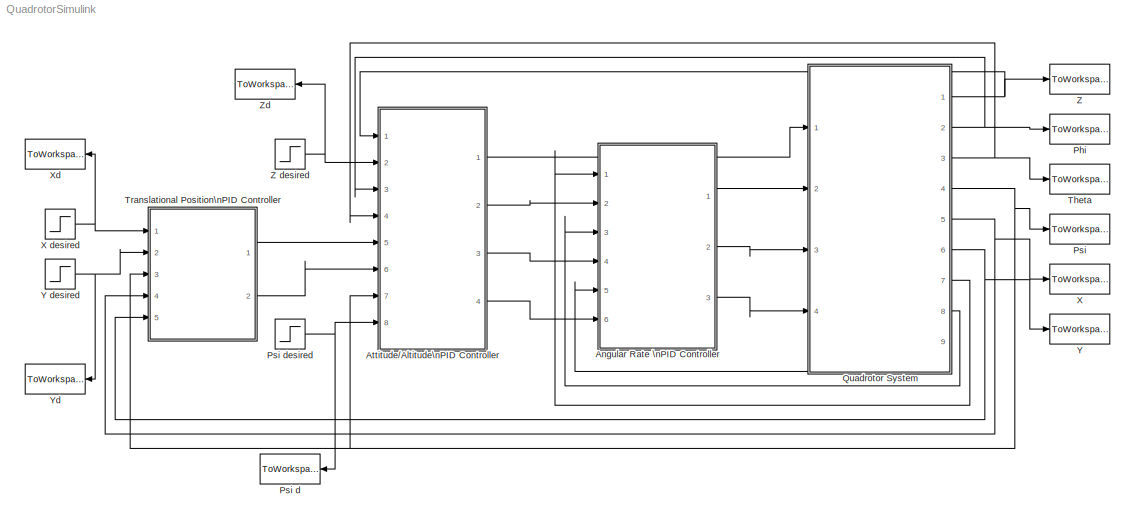
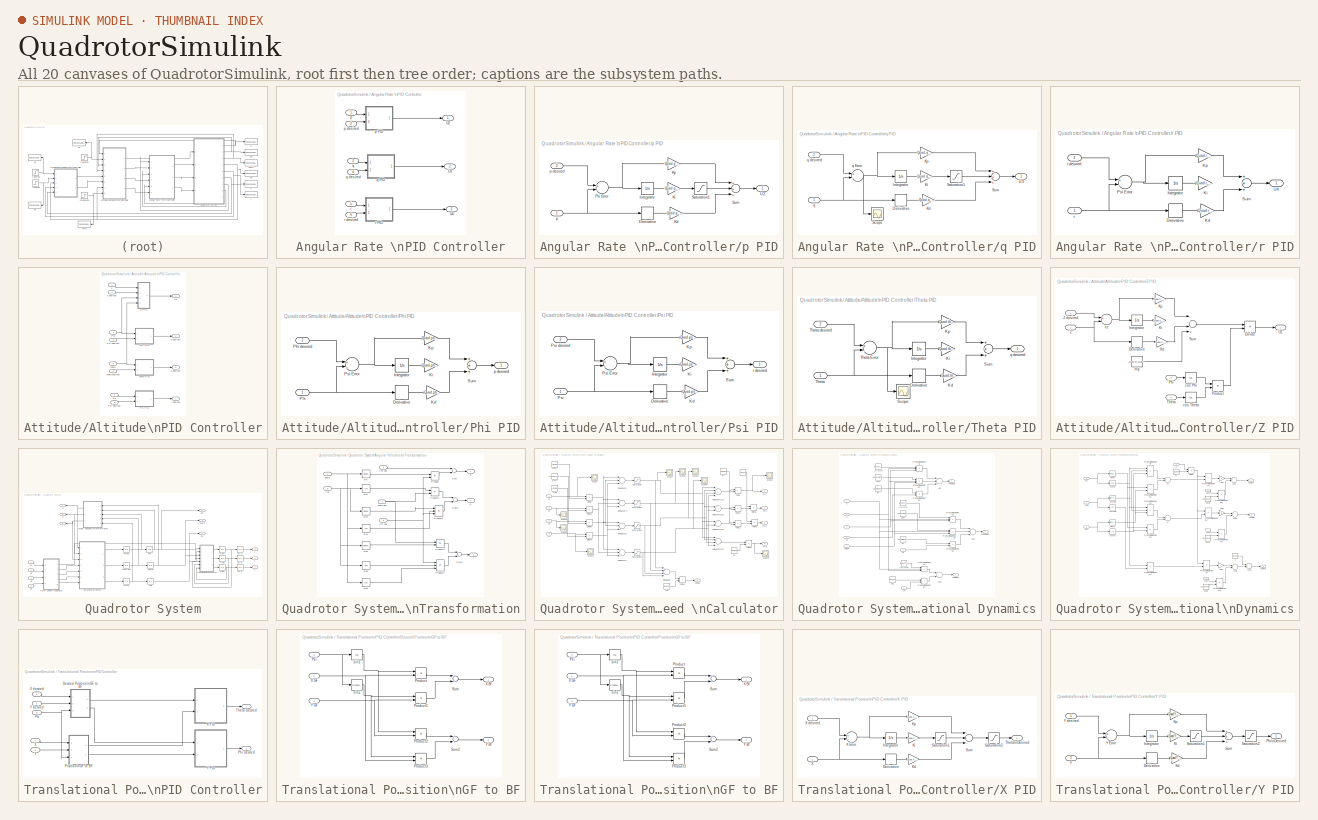
[diagram: thumbnail index - all 20 canvases of the model, root first then tree order]
MODEL QuadrotorSimulink
KIND model
BLOCK [SubSystem] Angular Rate \nPID Controller
  Ports = [6, 3]
  RequestExecContextInheritance = off
  SID = 1
BLOCK [Outport] Angular Rate \nPID Controller/U2
  IconDisplay = Port number
  SID = 44
BLOCK [Outport] Angular Rate \nPID Controller/U3
  IconDisplay = Port number
  Port = 2
  SID = 45
BLOCK [Outport] Angular Rate \nPID Controller/U4
  IconDisplay = Port number
  Port = 3
  SID = 46
BLOCK [Inport] Angular Rate \nPID Controller/p
  IconDisplay = Port number
  SID = 2
BLOCK [SubSystem] Angular Rate \nPID Controller/p PID
  Ports = [2, 1]
  RequestExecContextInheritance = off
  SID = 8
BLOCK [Derivative] Angular Rate \nPID Controller/p PID/Derivative
  SID = 11
BLOCK [Integrator] Angular Rate \nPID Controller/p PID/Integrator
  Ports = [1, 1]
  SID = 12
BLOCK [Gain] Angular Rate \nPID Controller/p PID/Kd
  Gain = Quad.p_KD
  OutDataTypeStr = Inherit: Inherit via internal rule
  ParamDataTypeStr = Inherit: Inherit via internal rule
  SID = 13
  SaturateOnIntegerOverflow = off
BLOCK [Gain] Angular Rate \nPID Controller/p PID/Ki
  Gain = Quad.p_KI
  OutDataTypeStr = Inherit: Inherit via internal rule
  ParamDataTypeStr = Inherit: Inherit via internal rule
  SID = 14
  SaturateOnIntegerOverflow = off
BLOCK [Gain] Angular Rate \nPID Controller/p PID/Kp
  Gain = Quad.p_KP
  OutDataTypeStr = Inherit: Inherit via internal rule
  ParamDataTypeStr = Inherit: Inherit via internal rule
  SID = 15
  SaturateOnIntegerOverflow = off
BLOCK [Sum] Angular Rate \nPID Controller/p PID/Psi Error
  InputSameDT = off
  Inputs = +-
  OutDataTypeStr = Inherit: Inherit via internal rule
  Ports = [2, 1]
  SID = 16
  SaturateOnIntegerOverflow = off
BLOCK [Saturate] Angular Rate \nPID Controller/p PID/Saturation1
  InputPortMap = u0
  LowerLimit = Quad.U2_min
  Ports = [1, 1]
  SID = 17
  UpperLimit = Quad.U2_max
BLOCK [Sum] Angular Rate \nPID Controller/p PID/Sum
  InputSameDT = off
  Inputs = +++
  OutDataTypeStr = Inherit: Inherit via internal rule
  Ports = [3, 1]
  SID = 18
  SaturateOnIntegerOverflow = off
BLOCK [Outport] Angular Rate \nPID Controller/p PID/U2
  IconDisplay = Port number
  SID = 19
BLOCK [Inport] Angular Rate \nPID Controller/p PID/p
  IconDisplay = Port number
  SID = 9
BLOCK [Inport] Angular Rate \nPID Controller/p PID/p desired
  IconDisplay = Port number
  Port = 2
  SID = 10
BLOCK [Inport] Angular Rate \nPID Controller/p desired
  IconDisplay = Port number
  Port = 2
  SID = 3
BLOCK [Inport] Angular Rate \nPID Controller/q
  IconDisplay = Port number
  Port = 3
  SID = 4
BLOCK [SubSystem] Angular Rate \nPID Controller/q PID
  Ports = [2, 1]
  RequestExecContextInheritance = off
  SID = 20
BLOCK [Derivative] Angular Rate \nPID Controller/q PID/Derivative
  SID = 23
BLOCK [Integrator] Angular Rate \nPID Controller/q PID/Integrator
  Ports = [1, 1]
  SID = 24
BLOCK [Gain] Angular Rate \nPID Controller/q PID/Kd
  Gain = Quad.q_KD
  OutDataTypeStr = Inherit: Inherit via internal rule
  ParamDataTypeStr = Inherit: Inherit via internal rule
  SID = 25
  SaturateOnIntegerOverflow = off
BLOCK [Gain] Angular Rate \nPID Controller/q PID/Ki
  Gain = Quad.q_KI
  OutDataTypeStr = Inherit: Inherit via internal rule
  ParamDataTypeStr = Inherit: Inherit via internal rule
  SID = 26
  SaturateOnIntegerOverflow = off
BLOCK [Gain] Angular Rate \nPID Controller/q PID/Kp
  Gain = Quad.q_KP
  OutDataTypeStr = Inherit: Inherit via internal rule
  ParamDataTypeStr = Inherit: Inherit via internal rule
  SID = 27
  SaturateOnIntegerOverflow = off
BLOCK [Saturate] Angular Rate \nPID Controller/q PID/Saturation1
  InputPortMap = u0
  LowerLimit = Quad.U3_min
  Ports = [1, 1]
  SID = 28
  UpperLimit = Quad.U3_max
BLOCK [Scope] Angular Rate \nPID Controller/q PID/Scope
  Floating = off
  NumInputPorts = 1
  Ports = [1]
  SID = 29
  ScopeSpecificationString = C++SS(StrPVP('Location','[188, 390, 512, 629]'),StrPVP('Open','off'),MxPVP('AxesTitles',53,'struct(''axes1'',''%<SignalLabel>'')'),StrPVP('SaveName','ScopeData11'),StrPVP('DataFormat','StructureWithTime'),StrPVP('BlockParamSampleTime','0'),StrPVP('LimitDataPoints','on'),StrPVP('Decimation','1'),StrPVP('BlockParamSampleInput','off'))
BLOCK [Sum] Angular Rate \nPID Controller/q PID/Sum
  InputSameDT = off
  Inputs = +++
  OutDataTypeStr = Inherit: Inherit via internal rule
  Ports = [3, 1]
  SID = 30
  SaturateOnIntegerOverflow = off
BLOCK [Outport] Angular Rate \nPID Controller/q PID/U3
  IconDisplay = Port number
  SID = 32
BLOCK [Inport] Angular Rate \nPID Controller/q PID/q
  IconDisplay = Port number
  SID = 21
BLOCK [Sum] Angular Rate \nPID Controller/q PID/q Error
  InputSameDT = off
  Inputs = +-
  OutDataTypeStr = Inherit: Inherit via internal rule
  Ports = [2, 1]
  SID = 31
  SaturateOnIntegerOverflow = off
BLOCK [Inport] Angular Rate \nPID Controller/q PID/q desired
  IconDisplay = Port number
  Port = 2
  SID = 22
BLOCK [Inport] Angular Rate \nPID Controller/q desired
  IconDisplay = Port number
  Port = 4
  SID = 5
BLOCK [Inport] Angular Rate \nPID Controller/r
  IconDisplay = Port number
  Port = 5
  SID = 6
BLOCK [SubSystem] Angular Rate \nPID Controller/r PID
  Ports = [2, 1]
  RequestExecContextInheritance = off
  SID = 33
BLOCK [Derivative] Angular Rate \nPID Controller/r PID/Derivative
  SID = 36
BLOCK [Integrator] Angular Rate \nPID Controller/r PID/Integrator
  Ports = [1, 1]
  SID = 37
BLOCK [Gain] Angular Rate \nPID Controller/r PID/Kd
  Gain = Quad.r_KD
  OutDataTypeStr = Inherit: Inherit via internal rule
  ParamDataTypeStr = Inherit: Inherit via internal rule
  SID = 38
  SaturateOnIntegerOverflow = off
BLOCK [Gain] Angular Rate \nPID Controller/r PID/Ki
  Gain = Quad.r_KI
  OutDataTypeStr = Inherit: Inherit via internal rule
  ParamDataTypeStr = Inherit: Inherit via internal rule
  SID = 39
  SaturateOnIntegerOverflow = off
BLOCK [Gain] Angular Rate \nPID Controller/r PID/Kp
  Gain = Quad.r_KP
  OutDataTypeStr = Inherit: Inherit via internal rule
  ParamDataTypeStr = Inherit: Inherit via internal rule
  SID = 40
  SaturateOnIntegerOverflow = off
BLOCK [Sum] Angular Rate \nPID Controller/r PID/Psi Error
  InputSameDT = off
  Inputs = +-
  OutDataTypeStr = Inherit: Inherit via internal rule
  Ports = [2, 1]
  SID = 41
  SaturateOnIntegerOverflow = off
BLOCK [Sum] Angular Rate \nPID Controller/r PID/Sum
  InputSameDT = off
  Inputs = +++
  OutDataTypeStr = Inherit: Inherit via internal rule
  Ports = [3, 1]
  SID = 42
  SaturateOnIntegerOverflow = off
BLOCK [Outport] Angular Rate \nPID Controller/r PID/U4
  IconDisplay = Port number
  SID = 43
BLOCK [Inport] Angular Rate \nPID Controller/r PID/r
  IconDisplay = Port number
  SID = 34
BLOCK [Inport] Angular Rate \nPID Controller/r PID/r desired
  IconDisplay = Port number
  Port = 2
  SID = 35
BLOCK [Inport] Angular Rate \nPID Controller/r desired
  IconDisplay = Port number
  Port = 6
  SID = 7
BLOCK [SubSystem] Attitude//Altitude\nPID Controller
  Ports = [8, 4]
  RequestExecContextInheritance = off
  SID = 47
BLOCK [Inport] Attitude//Altitude\nPID Controller/Phi
  IconDisplay = Port number
  Port = 3
  SID = 50
BLOCK [SubSystem] Attitude//Altitude\nPID Controller/Phi PID
  Ports = [2, 1]
  RequestExecContextInheritance = off
  SID = 56
BLOCK [Derivative] Attitude//Altitude\nPID Controller/Phi PID/Derivative
  SID = 59
BLOCK [Integrator] Attitude//Altitude\nPID Controller/Phi PID/Integrator
  Ports = [1, 1]
  SID = 60
BLOCK [Gain] Attitude//Altitude\nPID Controller/Phi PID/Kd
  Gain = Quad.phi_KD
  OutDataTypeStr = Inherit: Inherit via internal rule
  ParamDataTypeStr = Inherit: Inherit via internal rule
  SID = 61
  SaturateOnIntegerOverflow = off
BLOCK [Gain] Attitude//Altitude\nPID Controller/Phi PID/Ki
  Gain = Quad.phi_KI
  OutDataTypeStr = Inherit: Inherit via internal rule
  ParamDataTypeStr = Inherit: Inherit via internal rule
  SID = 62
  SaturateOnIntegerOverflow = off
BLOCK [Gain] Attitude//Altitude\nPID Controller/Phi PID/Kp
  Gain = Quad.phi_KP
  OutDataTypeStr = Inherit: Inherit via internal rule
  ParamDataTypeStr = Inherit: Inherit via internal rule
  SID = 63
  SaturateOnIntegerOverflow = off
BLOCK [Inport] Attitude//Altitude\nPID Controller/Phi PID/Phi
  IconDisplay = Port number
  SID = 57
BLOCK [Inport] Attitude//Altitude\nPID Controller/Phi PID/Phi desired
  IconDisplay = Port number
  Port = 2
  SID = 58
BLOCK [Sum] Attitude//Altitude\nPID Controller/Phi PID/Psi Error
  InputSameDT = off
  Inputs = +-
  OutDataTypeStr = Inherit: Inherit via internal rule
  Ports = [2, 1]
  SID = 64
  SaturateOnIntegerOverflow = off
BLOCK [Sum] Attitude//Altitude\nPID Controller/Phi PID/Sum
  InputSameDT = off
  Inputs = +++
  OutDataTypeStr = Inherit: Inherit via internal rule
  Ports = [3, 1]
  SID = 65
  SaturateOnIntegerOverflow = off
BLOCK [Outport] Attitude//Altitude\nPID Controller/Phi PID/p desired
  IconDisplay = Port number
  SID = 66
BLOCK [Inport] Attitude//Altitude\nPID Controller/Phi desired
  IconDisplay = Port number
  Port = 6
  SID = 53
BLOCK [Inport] Attitude//Altitude\nPID Controller/Psi
  IconDisplay = Port number
  Port = 7
  SID = 54
BLOCK [SubSystem] Attitude//Altitude\nPID Controller/Psi PID
  Ports = [2, 1]
  RequestExecContextInheritance = off
  SID = 67
BLOCK [Derivative] Attitude//Altitude\nPID Controller/Psi PID/Derivative
  SID = 70
BLOCK [Integrator] Attitude//Altitude\nPID Controller/Psi PID/Integrator
  Ports = [1, 1]
  SID = 71
BLOCK [Gain] Attitude//Altitude\nPID Controller/Psi PID/Kd
  Gain = Quad.psi_KD
  OutDataTypeStr = Inherit: Inherit via internal rule
  ParamDataTypeStr = Inherit: Inherit via internal rule
  SID = 72
  SaturateOnIntegerOverflow = off
BLOCK [Gain] Attitude//Altitude\nPID Controller/Psi PID/Ki
  Gain = Quad.psi_KI
  OutDataTypeStr = Inherit: Inherit via internal rule
  ParamDataTypeStr = Inherit: Inherit via internal rule
  SID = 73
  SaturateOnIntegerOverflow = off
BLOCK [Gain] Attitude//Altitude\nPID Controller/Psi PID/Kp
  Gain = Quad.psi_KP
  OutDataTypeStr = Inherit: Inherit via internal rule
  ParamDataTypeStr = Inherit: Inherit via internal rule
  SID = 74
  SaturateOnIntegerOverflow = off
BLOCK [Inport] Attitude//Altitude\nPID Controller/Psi PID/Psi
  IconDisplay = Port number
  SID = 68
BLOCK [Sum] Attitude//Altitude\nPID Controller/Psi PID/Psi Error
  InputSameDT = off
  Inputs = +-
  OutDataTypeStr = Inherit: Inherit via internal rule
  Ports = [2, 1]
  SID = 75
  SaturateOnIntegerOverflow = off
BLOCK [Inport] Attitude//Altitude\nPID Controller/Psi PID/Psi desired
  IconDisplay = Port number
  Port = 2
  SID = 69
BLOCK [Sum] Attitude//Altitude\nPID Controller/Psi PID/Sum
  InputSameDT = off
  Inputs = +++
  OutDataTypeStr = Inherit: Inherit via internal rule
  Ports = [3, 1]
  SID = 76
  SaturateOnIntegerOverflow = off
BLOCK [Outport] Attitude//Altitude\nPID Controller/Psi PID/r desired
  IconDisplay = Port number
  SID = 77
BLOCK [Inport] Attitude//Altitude\nPID Controller/Psi desired
  IconDisplay = Port number
  Port = 8
  SID = 55
BLOCK [Inport] Attitude//Altitude\nPID Controller/Theta
  IconDisplay = Port number
  Port = 4
  SID = 51
BLOCK [SubSystem] Attitude//Altitude\nPID Controller/Theta PID
  Ports = [2, 1]
  RequestExecContextInheritance = off
  SID = 78
BLOCK [Derivative] Attitude//Altitude\nPID Controller/Theta PID/Derivative
  SID = 81
BLOCK [Integrator] Attitude//Altitude\nPID Controller/Theta PID/Integrator
  Ports = [1, 1]
  SID = 82
BLOCK [Gain] Attitude//Altitude\nPID Controller/Theta PID/Kd
  Gain = Quad.theta_KD
  OutDataTypeStr = Inherit: Inherit via internal rule
  ParamDataTypeStr = Inherit: Inherit via internal rule
  SID = 83
  SaturateOnIntegerOverflow = off
BLOCK [Gain] Attitude//Altitude\nPID Controller/Theta PID/Ki
  Gain = Quad.theta_KI
  OutDataTypeStr = Inherit: Inherit via internal rule
  ParamDataTypeStr = Inherit: Inherit via internal rule
  SID = 84
  SaturateOnIntegerOverflow = off
BLOCK [Gain] Attitude//Altitude\nPID Controller/Theta PID/Kp
  Gain = Quad.theta_KP
  OutDataTypeStr = Inherit: Inherit via internal rule
  ParamDataTypeStr = Inherit: Inherit via internal rule
  SID = 85
  SaturateOnIntegerOverflow = off
BLOCK [Scope] Attitude//Altitude\nPID Controller/Theta PID/Scope
  Floating = off
  NumInputPorts = 1
  Ports = [1]
  SID = 86
  ScopeSpecificationString = C++SS(StrPVP('Location','[671, 276, 995, 515]'),StrPVP('Open','off'),MxPVP('AxesTitles',53,'struct(''axes1'',''%<SignalLabel>'')'),StrPVP('SaveName','ScopeData10'),StrPVP('DataFormat','StructureWithTime'),StrPVP('BlockParamSampleTime','0'),StrPVP('LimitDataPoints','on'),StrPVP('Decimation','1'),StrPVP('BlockParamSampleInput','off'))
BLOCK [Sum] Attitude//Altitude\nPID Controller/Theta PID/Sum
  InputSameDT = off
  Inputs = +++
  OutDataTypeStr = Inherit: Inherit via internal rule
  Ports = [3, 1]
  SID = 87
  SaturateOnIntegerOverflow = off
BLOCK [Inport] Attitude//Altitude\nPID Controller/Theta PID/Theta
  IconDisplay = Port number
  SID = 79
BLOCK [Sum] Attitude//Altitude\nPID Controller/Theta PID/Theta Error
  InputSameDT = off
  Inputs = +-
  OutDataTypeStr = Inherit: Inherit via internal rule
  Ports = [2, 1]
  SID = 88
  SaturateOnIntegerOverflow = off
BLOCK [Inport] Attitude//Altitude\nPID Controller/Theta PID/Theta desired
  IconDisplay = Port number
  Port = 2
  SID = 80
BLOCK [Outport] Attitude//Altitude\nPID Controller/Theta PID/q desired
  IconDisplay = Port number
  SID = 89
BLOCK [Inport] Attitude//Altitude\nPID Controller/Theta desired
  IconDisplay = Port number
  Port = 5
  SID = 52
BLOCK [Outport] Attitude//Altitude\nPID Controller/U1
  IconDisplay = Port number
  SID = 108
BLOCK [Inport] Attitude//Altitude\nPID Controller/Z
  IconDisplay = Port number
  SID = 48
BLOCK [SubSystem] Attitude//Altitude\nPID Controller/Z PID
  Ports = [4, 1]
  RequestExecContextInheritance = off
  SID = 90
BLOCK [Derivative] Attitude//Altitude\nPID Controller/Z PID/Derivative
  SID = 95
BLOCK [Product] Attitude//Altitude\nPID Controller/Z PID/Divide
  InputSameDT = off
  Inputs = */
  OutDataTypeStr = Inherit: Inherit via internal rule
  Ports = [2, 1]
  RndMeth = Floor
  SID = 96
  SaturateOnIntegerOverflow = off
BLOCK [Integrator] Attitude//Altitude\nPID Controller/Z PID/Integrator
  Ports = [1, 1]
  SID = 97
BLOCK [Gain] Attitude//Altitude\nPID Controller/Z PID/Kd
  Gain = Quad.Z_KD
  OutDataTypeStr = Inherit: Inherit via internal rule
  ParamDataTypeStr = Inherit: Inherit via internal rule
  SID = 98
  SaturateOnIntegerOverflow = off
BLOCK [Gain] Attitude//Altitude\nPID Controller/Z PID/Ki
  Gain = Quad.Z_KI
  OutDataTypeStr = Inherit: Inherit via internal rule
  ParamDataTypeStr = Inherit: Inherit via internal rule
  SID = 99
  SaturateOnIntegerOverflow = off
BLOCK [Gain] Attitude//Altitude\nPID Controller/Z PID/Kp
  Gain = Quad.Z_KP
  OutDataTypeStr = Inherit: Inherit via internal rule
  ParamDataTypeStr = Inherit: Inherit via internal rule
  SID = 100
  SaturateOnIntegerOverflow = off
BLOCK [Inport] Attitude//Altitude\nPID Controller/Z PID/Phi
  IconDisplay = Port number
  Port = 3
  SID = 93
BLOCK [Product] Attitude//Altitude\nPID Controller/Z PID/Product
  InputSameDT = off
  OutDataTypeStr = Inherit: Inherit via internal rule
  Ports = [2, 1]
  SID = 101
  SaturateOnIntegerOverflow = off
BLOCK [Sum] Attitude//Altitude\nPID Controller/Z PID/Sum
  InputSameDT = off
  Inputs = ---+
  OutDataTypeStr = Inherit: Inherit via internal rule
  Ports = [4, 1]
  SID = 102
  SaturateOnIntegerOverflow = off
BLOCK [Inport] Attitude//Altitude\nPID Controller/Z PID/Theta
  IconDisplay = Port number
  Port = 4
  SID = 94
BLOCK [Outport] Attitude//Altitude\nPID Controller/Z PID/U1
  IconDisplay = Port number
  SID = 107
BLOCK [Inport] Attitude//Altitude\nPID Controller/Z PID/Z
  IconDisplay = Port number
  SID = 91
BLOCK [Inport] Attitude//Altitude\nPID Controller/Z PID/Z desired
  IconDisplay = Port number
  Port = 2
  SID = 92
BLOCK [Trigonometry] Attitude//Altitude\nPID Controller/Z PID/cos Phi
  Operator = cos
  Ports = [1, 1]
  SID = 103
BLOCK [Trigonometry] Attitude//Altitude\nPID Controller/Z PID/cos Theta
  Operator = cos
  Ports = [1, 1]
  SID = 104
BLOCK [Sum] Attitude//Altitude\nPID Controller/Z PID/ez
  InputSameDT = off
  Inputs = +-
  OutDataTypeStr = Inherit: Inherit via internal rule
  Ports = [2, 1]
  SID = 105
  SaturateOnIntegerOverflow = off
BLOCK [Constant] Attitude//Altitude\nPID Controller/Z PID/mg
  SID = 106
  Value = Quad.m*Quad.g
BLOCK [Inport] Attitude//Altitude\nPID Controller/Z desired
  IconDisplay = Port number
  Port = 2
  SID = 49
BLOCK [Outport] Attitude//Altitude\nPID Controller/p desired
  IconDisplay = Port number
  Port = 2
  SID = 109
BLOCK [Outport] Attitude//Altitude\nPID Controller/q desired
  IconDisplay = Port number
  Port = 3
  SID = 110
BLOCK [Outport] Attitude//Altitude\nPID Controller/r desired
  IconDisplay = Port number
  Port = 4
  SID = 111
BLOCK [ToWorkspace] Phi
  MaxDataPoints = inf
  Ports = [1]
  SID = 112
  SampleTime = -1
  SaveFormat = Structure
  VariableName = Phi_out
BLOCK [ToWorkspace] Psi
  MaxDataPoints = inf
  Ports = [1]
  SID = 113
  SampleTime = -1
  SaveFormat = Structure
  VariableName = Psi_out
BLOCK [ToWorkspace] Psi d
  MaxDataPoints = inf
  Ports = [1]
  SID = 114
  SampleTime = -1
  SaveFormat = Structure
  VariableName = Psi_desired
BLOCK [Step] Psi desired
  After = 0
  SID = 115
  SampleTime = 0
BLOCK [SubSystem] Quadrotor System
  Ports = [4, 9]
  RequestExecContextInheritance = off
  SID = 116
BLOCK [Integrator] Quadrotor System/Act X
  Ports = [1, 1]
  SID = 121
BLOCK [Integrator] Quadrotor System/Act Y
  Ports = [1, 1]
  SID = 122
BLOCK [Integrator] Quadrotor System/Act Z
  Ports = [1, 1]
  SID = 123
BLOCK [SubSystem] Quadrotor System/Angular Velocities\nTransformation
  Ports = [5, 3]
  RequestExecContextInheritance = off
  SID = 124
BLOCK [Inport] Quadrotor System/Angular Velocities\nTransformation/Phi
  IconDisplay = Port number
  Port = 2
  SID = 126
BLOCK [Inport] Quadrotor System/Angular Velocities\nTransformation/Phi dot
  IconDisplay = Port number
  Port = 3
  SID = 127
BLOCK [Product] Quadrotor System/Angular Velocities\nTransformation/Product
  InputSameDT = off
  OutDataTypeStr = Inherit: Inherit via internal rule
  Ports = [2, 1]
  SID = 130
  SaturateOnIntegerOverflow = off
BLOCK [Product] Quadrotor System/Angular Velocities\nTransformation/Product1
  InputSameDT = off
  OutDataTypeStr = Inherit: Inherit via internal rule
  Ports = [2, 1]
  SID = 131
  SaturateOnIntegerOverflow = off
BLOCK [Product] Quadrotor System/Angular Velocities\nTransformation/Product2
  InputSameDT = off
  Inputs = 3
  OutDataTypeStr = Inherit: Inherit via internal rule
  Ports = [3, 1]
  SID = 132
  SaturateOnIntegerOverflow = off
BLOCK [Product] Quadrotor System/Angular Velocities\nTransformation/Product3
  InputSameDT = off
  OutDataTypeStr = Inherit: Inherit via internal rule
  Ports = [2, 1]
  SID = 133
  SaturateOnIntegerOverflow = off
BLOCK [Product] Quadrotor System/Angular Velocities\nTransformation/Product4
  InputSameDT = off
  Inputs = 3
  OutDataTypeStr = Inherit: Inherit via internal rule
  Ports = [3, 1]
  SID = 134
  SaturateOnIntegerOverflow = off
BLOCK [Inport] Quadrotor System/Angular Velocities\nTransformation/Psi dot
  IconDisplay = Port number
  Port = 5
  SID = 129
BLOCK [Sum] Quadrotor System/Angular Velocities\nTransformation/Sum
  InputSameDT = off
  Inputs = +-
  OutDataTypeStr = Inherit: Inherit via internal rule
  Ports = [2, 1]
  SID = 135
  SaturateOnIntegerOverflow = off
BLOCK [Sum] Quadrotor System/Angular Velocities\nTransformation/Sum1
  InputSameDT = off
  OutDataTypeStr = Inherit: Inherit via internal rule
  Ports = [2, 1]
  SID = 136
  SaturateOnIntegerOverflow = off
BLOCK [Sum] Quadrotor System/Angular Velocities\nTransformation/Sum2
  InputSameDT = off
  OutDataTypeStr = Inherit: Inherit via internal rule
  Ports = [2, 1]
  SID = 137
  SaturateOnIntegerOverflow = off
BLOCK [Inport] Quadrotor System/Angular Velocities\nTransformation/Theta
  IconDisplay = Port number
  SID = 125
BLOCK [Inport] Quadrotor System/Angular Velocities\nTransformation/Theta dot
  IconDisplay = Port number
  Port = 4
  SID = 128
BLOCK [Outport] Quadrotor System/Angular Velocities\nTransformation/p
  IconDisplay = Port number
  SID = 145
BLOCK [Outport] Quadrotor System/Angular Velocities\nTransformation/q
  IconDisplay = Port number
  Port = 2
  SID = 146
BLOCK [Outport] Quadrotor System/Angular Velocities\nTransformation/r
  IconDisplay = Port number
  Port = 3
  SID = 147
BLOCK [Trigonometry] Quadrotor System/Angular Velocities\nTransformation/sin
  Ports = [1, 1]
  SID = 138
BLOCK [Trigonometry] Quadrotor System/Angular Velocities\nTransformation/sin1
  Operator = cos
  Ports = [1, 1]
  SID = 139
BLOCK [Trigonometry] Quadrotor System/Angular Velocities\nTransformation/sin2
  Ports = [1, 1]
  SID = 140
BLOCK [Trigonometry] Quadrotor System/Angular Velocities\nTransformation/sin3
  Ports = [1, 1]
  SID = 141
BLOCK [Trigonometry] Quadrotor System/Angular Velocities\nTransformation/sin4
  Operator = cos
  Ports = [1, 1]
  SID = 142
BLOCK [Trigonometry] Quadrotor System/Angular Velocities\nTransformation/sin5
  Operator = cos
  Ports = [1, 1]
  SID = 143
BLOCK [Trigonometry] Quadrotor System/Angular Velocities\nTransformation/sin6
  Operator = cos
  Ports = [1, 1]
  SID = 144
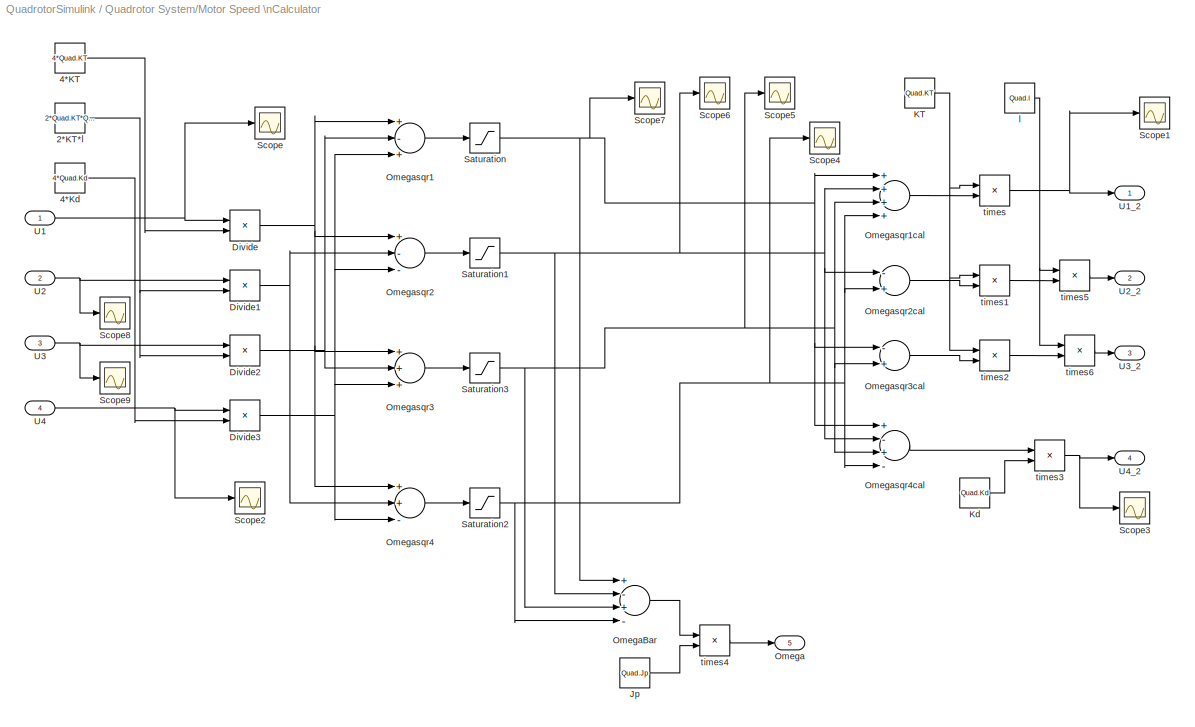
BLOCK [SubSystem] Quadrotor System/Motor Speed \nCalculator
  Ports = [4, 5]
  RequestExecContextInheritance = off
  SID = 148
BLOCK [Constant] Quadrotor System/Motor Speed \nCalculator/2*KT*l
  SID = 153
  Value = 2*Quad.KT*Quad.l
BLOCK [Constant] Quadrotor System/Motor Speed \nCalculator/4*KT
  SID = 154
  Value = 4*Quad.KT
BLOCK [Constant] Quadrotor System/Motor Speed \nCalculator/4*Kd
  SID = 155
  Value = 4*Quad.Kd
BLOCK [Product] Quadrotor System/Motor Speed \nCalculator/Divide
  InputSameDT = off
  Inputs = */
  OutDataTypeStr = Inherit: Inherit via internal rule
  Ports = [2, 1]
  RndMeth = Floor
  SID = 156
  SaturateOnIntegerOverflow = off
BLOCK [Product] Quadrotor System/Motor Speed \nCalculator/Divide1
  InputSameDT = off
  Inputs = */
  OutDataTypeStr = Inherit: Inherit via internal rule
  Ports = [2, 1]
  RndMeth = Floor
  SID = 157
  SaturateOnIntegerOverflow = off
BLOCK [Product] Quadrotor System/Motor Speed \nCalculator/Divide2
  InputSameDT = off
  Inputs = */
  OutDataTypeStr = Inherit: Inherit via internal rule
  Ports = [2, 1]
  RndMeth = Floor
  SID = 158
  SaturateOnIntegerOverflow = off
BLOCK [Product] Quadrotor System/Motor Speed \nCalculator/Divide3
  InputSameDT = off
  Inputs = */
  OutDataTypeStr = Inherit: Inherit via internal rule
  Ports = [2, 1]
  RndMeth = Floor
  SID = 159
  SaturateOnIntegerOverflow = off
BLOCK [Constant] Quadrotor System/Motor Speed \nCalculator/Jp
  SID = 160
  Value = Quad.Jp
BLOCK [Constant] Quadrotor System/Motor Speed \nCalculator/KT
  SID = 161
  Value = Quad.KT
BLOCK [Constant] Quadrotor System/Motor Speed \nCalculator/Kd
  SID = 162
  Value = Quad.Kd
BLOCK [Outport] Quadrotor System/Motor Speed \nCalculator/Omega
  IconDisplay = Port number
  Port = 5
  SID = 198
BLOCK [Sum] Quadrotor System/Motor Speed \nCalculator/OmegaBar
  InputSameDT = off
  Inputs = +-+-
  OutDataTypeStr = Inherit: Inherit via internal rule
  Ports = [4, 1]
  SID = 163
  SaturateOnIntegerOverflow = off
BLOCK [Sum] Quadrotor System/Motor Speed \nCalculator/Omegasqr1
  InputSameDT = off
  Inputs = +-+
  OutDataTypeStr = Inherit: Inherit via internal rule
  Ports = [3, 1]
  SID = 164
  SaturateOnIntegerOverflow = off
BLOCK [Sum] Quadrotor System/Motor Speed \nCalculator/Omegasqr1cal
  InputSameDT = off
  Inputs = ++++
  OutDataTypeStr = Inherit: Inherit via internal rule
  Ports = [4, 1]
  SID = 165
  SaturateOnIntegerOverflow = off
BLOCK [Sum] Quadrotor System/Motor Speed \nCalculator/Omegasqr2
  InputSameDT = off
  Inputs = +--
  OutDataTypeStr = Inherit: Inherit via internal rule
  Ports = [3, 1]
  SID = 166
  SaturateOnIntegerOverflow = off
BLOCK [Sum] Quadrotor System/Motor Speed \nCalculator/Omegasqr2cal
  InputSameDT = off
  Inputs = -+
  OutDataTypeStr = Inherit: Inherit via internal rule
  Ports = [2, 1]
  SID = 167
  SaturateOnIntegerOverflow = off
BLOCK [Sum] Quadrotor System/Motor Speed \nCalculator/Omegasqr3
  InputSameDT = off
  Inputs = +++
  OutDataTypeStr = Inherit: Inherit via internal rule
  Ports = [3, 1]
  SID = 168
  SaturateOnIntegerOverflow = off
BLOCK [Sum] Quadrotor System/Motor Speed \nCalculator/Omegasqr3cal
  InputSameDT = off
  Inputs = -+
  OutDataTypeStr = Inherit: Inherit via internal rule
  Ports = [2, 1]
  SID = 169
  SaturateOnIntegerOverflow = off
BLOCK [Sum] Quadrotor System/Motor Speed \nCalculator/Omegasqr4
  InputSameDT = off
  Inputs = ++-
  OutDataTypeStr = Inherit: Inherit via internal rule
  Ports = [3, 1]
  SID = 170
  SaturateOnIntegerOverflow = off
BLOCK [Sum] Quadrotor System/Motor Speed \nCalculator/Omegasqr4cal
  InputSameDT = off
  Inputs = +-+-
  OutDataTypeStr = Inherit: Inherit via internal rule
  Ports = [4, 1]
  SID = 171
  SaturateOnIntegerOverflow = off
BLOCK [Saturate] Quadrotor System/Motor Speed \nCalculator/Saturation
  InputPortMap = u0
  LowerLimit = Quad.min_motor_speed^2
  Ports = [1, 1]
  SID = 172
  UpperLimit = Quad.max_motor_speed^2
  ZeroCross = off
BLOCK [Saturate] Quadrotor System/Motor Speed \nCalculator/Saturation1
  InputPortMap = u0
  LowerLimit = Quad.min_motor_speed^2
  Ports = [1, 1]
  SID = 173
  UpperLimit = Quad.max_motor_speed^2
  ZeroCross = off
BLOCK [Saturate] Quadrotor System/Motor Speed \nCalculator/Saturation2
  InputPortMap = u0
  LowerLimit = Quad.min_motor_speed^2
  Ports = [1, 1]
  SID = 174
  UpperLimit = Quad.max_motor_speed^2
  ZeroCross = off
BLOCK [Saturate] Quadrotor System/Motor Speed \nCalculator/Saturation3
  InputPortMap = u0
  LowerLimit = Quad.min_motor_speed^2
  Ports = [1, 1]
  SID = 175
  UpperLimit = Quad.max_motor_speed^2
  ZeroCross = off
BLOCK [Scope] Quadrotor System/Motor Speed \nCalculator/Scope
  Floating = off
  NumInputPorts = 1
  Ports = [1]
  SID = 176
  ScopeSpecificationString = C++SS(StrPVP('Location','[188, 390, 512, 629]'),StrPVP('Open','off'),MxPVP('AxesTitles',53,'struct(''axes1'',''%<SignalLabel>'')'),StrPVP('SaveName','ScopeData2'),StrPVP('DataFormat','StructureWithTime'),StrPVP('BlockParamSampleTime','0'),StrPVP('LimitDataPoints','on'),StrPVP('Decimation','1'),StrPVP('BlockParamSampleInput','off'))
BLOCK [Scope] Quadrotor System/Motor Speed \nCalculator/Scope1
  Floating = off
  NumInputPorts = 1
  Ports = [1]
  SID = 177
  ScopeSpecificationString = C++SS(StrPVP('Location','[583, 385, 907, 624]'),StrPVP('Open','off'),MxPVP('AxesTitles',53,'struct(''axes1'',''%<SignalLabel>'')'),StrPVP('SaveName','ScopeData3'),StrPVP('DataFormat','StructureWithTime'),StrPVP('BlockParamSampleTime','0'),StrPVP('LimitDataPoints','on'),StrPVP('Decimation','1'),StrPVP('BlockParamSampleInput','off'))
BLOCK [Scope] Quadrotor System/Motor Speed \nCalculator/Scope2
  Floating = off
  NumInputPorts = 1
  Ports = [1]
  SID = 178
  ScopeSpecificationString = C++SS(StrPVP('Location','[188, 390, 512, 629]'),StrPVP('Open','off'),MxPVP('AxesTitles',53,'struct(''axes1'',''%<SignalLabel>'')'),StrPVP('SaveName','ScopeData4'),StrPVP('DataFormat','StructureWithTime'),StrPVP('BlockParamSampleTime','0'),StrPVP('LimitDataPoints','on'),StrPVP('Decimation','1'),StrPVP('BlockParamSampleInput','off'))
BLOCK [Scope] Quadrotor System/Motor Speed \nCalculator/Scope3
  Floating = off
  NumInputPorts = 1
  Ports = [1]
  SID = 179
  ScopeSpecificationString = C++SS(StrPVP('Location','[531, 393, 855, 632]'),StrPVP('Open','off'),MxPVP('AxesTitles',53,'struct(''axes1'',''%<SignalLabel>'')'),StrPVP('SaveName','ScopeData5'),StrPVP('DataFormat','StructureWithTime'),StrPVP('BlockParamSampleTime','0'),StrPVP('LimitDataPoints','on'),StrPVP('Decimation','1'),StrPVP('BlockParamSampleInput','off'))
BLOCK [Scope] Quadrotor System/Motor Speed \nCalculator/Scope4
  Floating = off
  NumInputPorts = 1
  Ports = [1]
  SID = 180
  ScopeSpecificationString = C++SS(StrPVP('Location','[188, 390, 512, 629]'),StrPVP('Open','off'),MxPVP('AxesTitles',53,'struct(''axes1'',''%<SignalLabel>'')'),StrPVP('SaveName','ScopeData6'),StrPVP('DataFormat','StructureWithTime'),StrPVP('BlockParamSampleTime','0'),StrPVP('LimitDataPoints','on'),StrPVP('Decimation','1'),StrPVP('BlockParamSampleInput','off'))
BLOCK [Scope] Quadrotor System/Motor Speed \nCalculator/Scope5
  Floating = off
  NumInputPorts = 1
  Ports = [1]
  SID = 181
  ScopeSpecificationString = C++SS(StrPVP('Location','[188, 390, 512, 629]'),StrPVP('Open','off'),MxPVP('AxesTitles',53,'struct(''axes1'',''%<SignalLabel>'')'),StrPVP('SaveName','ScopeData7'),StrPVP('DataFormat','StructureWithTime'),StrPVP('BlockParamSampleTime','0'),StrPVP('LimitDataPoints','on'),StrPVP('Decimation','1'),StrPVP('BlockParamSampleInput','off'))
BLOCK [Scope] Quadrotor System/Motor Speed \nCalculator/Scope6
  Floating = off
  NumInputPorts = 1
  Ports = [1]
  SID = 182
  ScopeSpecificationString = C++SS(StrPVP('Location','[188, 390, 512, 629]'),StrPVP('Open','off'),MxPVP('AxesTitles',53,'struct(''axes1'',''%<SignalLabel>'')'),StrPVP('SaveName','ScopeData8'),StrPVP('DataFormat','StructureWithTime'),StrPVP('BlockParamSampleTime','0'),StrPVP('LimitDataPoints','on'),StrPVP('Decimation','1'),StrPVP('BlockParamSampleInput','off'))
BLOCK [Scope] Quadrotor System/Motor Speed \nCalculator/Scope7
  Floating = off
  NumInputPorts = 1
  Ports = [1]
  SID = 183
  ScopeSpecificationString = C++SS(StrPVP('Location','[188, 390, 512, 629]'),StrPVP('Open','off'),MxPVP('AxesTitles',53,'struct(''axes1'',''%<SignalLabel>'')'),StrPVP('SaveName','ScopeData9'),StrPVP('DataFormat','StructureWithTime'),StrPVP('BlockParamSampleTime','0'),StrPVP('LimitDataPoints','on'),StrPVP('Decimation','1'),StrPVP('BlockParamSampleInput','off'))
BLOCK [Scope] Quadrotor System/Motor Speed \nCalculator/Scope8
  Floating = off
  NumInputPorts = 1
  Ports = [1]
  SID = 184
  ScopeSpecificationString = C++SS(StrPVP('Location','[188, 390, 512, 629]'),StrPVP('Open','off'),MxPVP('AxesTitles',53,'struct(''axes1'',''%<SignalLabel>'')'),StrPVP('DataFormat','StructureWithTime'),StrPVP('BlockParamSampleTime','0'),StrPVP('LimitDataPoints','on'),StrPVP('Decimation','1'),StrPVP('BlockParamSampleInput','off'))
BLOCK [Scope] Quadrotor System/Motor Speed \nCalculator/Scope9
  Floating = off
  NumInputPorts = 1
  Ports = [1]
  SID = 185
  ScopeSpecificationString = C++SS(StrPVP('Location','[188, 390, 512, 629]'),StrPVP('Open','off'),MxPVP('AxesTitles',53,'struct(''axes1'',''%<SignalLabel>'')'),StrPVP('SaveName','ScopeData1'),StrPVP('DataFormat','StructureWithTime'),StrPVP('BlockParamSampleTime','0'),StrPVP('LimitDataPoints','on'),StrPVP('Decimation','1'),StrPVP('BlockParamSampleInput','off'))
BLOCK [Inport] Quadrotor System/Motor Speed \nCalculator/U1
  IconDisplay = Port number
  SID = 149
BLOCK [Outport] Quadrotor System/Motor Speed \nCalculator/U1_2
  IconDisplay = Port number
  SID = 194
BLOCK [Inport] Quadrotor System/Motor Speed \nCalculator/U2
  IconDisplay = Port number
  Port = 2
  SID = 150
BLOCK [Outport] Quadrotor System/Motor Speed \nCalculator/U2_2
  IconDisplay = Port number
  Port = 2
  SID = 195
BLOCK [Inport] Quadrotor System/Motor Speed \nCalculator/U3
  IconDisplay = Port number
  Port = 3
  SID = 151
BLOCK [Outport] Quadrotor System/Motor Speed \nCalculator/U3_2
  IconDisplay = Port number
  Port = 3
  SID = 196
BLOCK [Inport] Quadrotor System/Motor Speed \nCalculator/U4
  IconDisplay = Port number
  Port = 4
  SID = 152
BLOCK [Outport] Quadrotor System/Motor Speed \nCalculator/U4_2
  IconDisplay = Port number
  Port = 4
  SID = 197
BLOCK [Constant] Quadrotor System/Motor Speed \nCalculator/l
  SID = 186
  Value = Quad.l
BLOCK [Product] Quadrotor System/Motor Speed \nCalculator/times
  InputSameDT = off
  Inputs = **
  OutDataTypeStr = Inherit: Inherit via internal rule
  Ports = [2, 1]
  RndMeth = Floor
  SID = 187
  SaturateOnIntegerOverflow = off
BLOCK [Product] Quadrotor System/Motor Speed \nCalculator/times1
  InputSameDT = off
  Inputs = **
  OutDataTypeStr = Inherit: Inherit via internal rule
  Ports = [2, 1]
  RndMeth = Floor
  SID = 188
  SaturateOnIntegerOverflow = off
BLOCK [Product] Quadrotor System/Motor Speed \nCalculator/times2
  InputSameDT = off
  Inputs = **
  OutDataTypeStr = Inherit: Inherit via internal rule
  Ports = [2, 1]
  RndMeth = Floor
  SID = 189
  SaturateOnIntegerOverflow = off
BLOCK [Product] Quadrotor System/Motor Speed \nCalculator/times3
  InputSameDT = off
  Inputs = **
  OutDataTypeStr = Inherit: Inherit via internal rule
  Ports = [2, 1]
  RndMeth = Floor
  SID = 190
  SaturateOnIntegerOverflow = off
BLOCK [Product] Quadrotor System/Motor Speed \nCalculator/times4
  InputSameDT = off
  Inputs = **
  OutDataTypeStr = Inherit: Inherit via internal rule
  Ports = [2, 1]
  RndMeth = Floor
  SID = 191
  SaturateOnIntegerOverflow = off
BLOCK [Product] Quadrotor System/Motor Speed \nCalculator/times5
  InputSameDT = off
  Inputs = **
  OutDataTypeStr = Inherit: Inherit via internal rule
  Ports = [2, 1]
  RndMeth = Floor
  SID = 192
  SaturateOnIntegerOverflow = off
BLOCK [Product] Quadrotor System/Motor Speed \nCalculator/times6
  InputSameDT = off
  Inputs = **
  OutDataTypeStr = Inherit: Inherit via internal rule
  Ports = [2, 1]
  RndMeth = Floor
  SID = 193
  SaturateOnIntegerOverflow = off
BLOCK [Outport] Quadrotor System/Phi
  IconDisplay = Port number
  Port = 2
  SID = 282
BLOCK [Integrator] Quadrotor System/Phi dot
  Ports = [1, 1]
  SID = 199
BLOCK [Integrator] Quadrotor System/Phi1
  Ports = [1, 1]
  SID = 200
  ZeroCross = off
BLOCK [Outport] Quadrotor System/Psi
  IconDisplay = Port number
  Port = 4
  SID = 284
BLOCK [Integrator] Quadrotor System/Psi dot
  Ports = [1, 1]
  SID = 201
  ZeroCross = off
BLOCK [Integrator] Quadrotor System/Psi1
  Ports = [1, 1]
  SID = 202
  ZeroCross = off
BLOCK [SubSystem] Quadrotor System/Rotational Dynamics
  Ports = [7, 3]
  RequestExecContextInheritance = off
  SID = 203
BLOCK [Constant] Quadrotor System/Rotational Dynamics/(Jx-Jy)//Jz
  SID = 211
  Value = (Quad.Jx - Quad.Jy)/Quad.Jz
BLOCK [Constant] Quadrotor System/Rotational Dynamics/(Jy-Jz)//Jx
  SID = 212
  Value = (Quad.Jy - Quad.Jz)/Quad.Jx
BLOCK [Constant] Quadrotor System/Rotational Dynamics/(Jz-Jx)//Jy
  SID = 213
  Value = (Quad.Jz - Quad.Jx)/Quad.Jy
BLOCK [Constant] Quadrotor System/Rotational Dynamics/1//Jz
  SID = 214
  Value = 1/Quad.Jz
BLOCK [Sum] Quadrotor System/Rotational Dynamics/Add
  InputSameDT = off
  Inputs = +-+
  OutDataTypeStr = Inherit: Inherit via internal rule
  Ports = [3, 1]
  SID = 215
  SaturateOnIntegerOverflow = off
BLOCK [Sum] Quadrotor System/Rotational Dynamics/Add1
  InputSameDT = off
  Inputs = +++
  OutDataTypeStr = Inherit: Inherit via internal rule
  Ports = [3, 1]
  SID = 216
  SaturateOnIntegerOverflow = off
BLOCK [Sum] Quadrotor System/Rotational Dynamics/Add2
  InputSameDT = off
  OutDataTypeStr = Inherit: Inherit via internal rule
  Ports = [2, 1]
  SID = 217
  SaturateOnIntegerOverflow = off
BLOCK [Constant] Quadrotor System/Rotational Dynamics/Jp//Jx
  SID = 218
  Value = Quad.Jp/Quad.Jx
BLOCK [Constant] Quadrotor System/Rotational Dynamics/Jp//Jy
  SID = 219
  Value = Quad.Jp/Quad.Jy
BLOCK [Inport] Quadrotor System/Rotational Dynamics/Omega
  IconDisplay = Port number
  Port = 7
  SID = 210
BLOCK [Outport] Quadrotor System/Rotational Dynamics/Phi dot dot
  IconDisplay = Port number
  SID = 230
BLOCK [Product] Quadrotor System/Rotational Dynamics/Product of\nElements
  InputSameDT = off
  Inputs = 3
  OutDataTypeStr = Inherit: Inherit via internal rule
  Ports = [3, 1]
  RndMeth = Floor
  SID = 220
  SaturateOnIntegerOverflow = off
BLOCK [Product] Quadrotor System/Rotational Dynamics/Product of\nElements1
  InputSameDT = off
  Inputs = 3
  OutDataTypeStr = Inherit: Inherit via internal rule
  Ports = [3, 1]
  RndMeth = Floor
  SID = 221
  SaturateOnIntegerOverflow = off
BLOCK [Product] Quadrotor System/Rotational Dynamics/Product of\nElements2
  InputSameDT = off
  OutDataTypeStr = Inherit: Inherit via internal rule
  Ports = [2, 1]
  RndMeth = Floor
  SID = 222
  SaturateOnIntegerOverflow = off
BLOCK [Product] Quadrotor System/Rotational Dynamics/Product of\nElements3
  InputSameDT = off
  Inputs = 3
  OutDataTypeStr = Inherit: Inherit via internal rule
  Ports = [3, 1]
  RndMeth = Floor
  SID = 223
  SaturateOnIntegerOverflow = off
BLOCK [Product] Quadrotor System/Rotational Dynamics/Product of\nElements4
  InputSameDT = off
  Inputs = 3
  OutDataTypeStr = Inherit: Inherit via internal rule
  Ports = [3, 1]
  RndMeth = Floor
  SID = 224
  SaturateOnIntegerOverflow = off
BLOCK [Product] Quadrotor System/Rotational Dynamics/Product of\nElements5
  InputSameDT = off
  OutDataTypeStr = Inherit: Inherit via internal rule
  Ports = [2, 1]
  RndMeth = Floor
  SID = 225
  SaturateOnIntegerOverflow = off
BLOCK [Product] Quadrotor System/Rotational Dynamics/Product of\nElements6
  InputSameDT = off
  Inputs = 3
  OutDataTypeStr = Inherit: Inherit via internal rule
  Ports = [3, 1]
  RndMeth = Floor
  SID = 226
  SaturateOnIntegerOverflow = off
BLOCK [Product] Quadrotor System/Rotational Dynamics/Product of\nElements7
  InputSameDT = off
  OutDataTypeStr = Inherit: Inherit via internal rule
  Ports = [2, 1]
  RndMeth = Floor
  SID = 227
  SaturateOnIntegerOverflow = off
BLOCK [Outport] Quadrotor System/Rotational Dynamics/Psi dot dot
  IconDisplay = Port number
  Port = 3
  SID = 232
BLOCK [Outport] Quadrotor System/Rotational Dynamics/Theta dot dot
  IconDisplay = Port number
  Port = 2
  SID = 231
BLOCK [Inport] Quadrotor System/Rotational Dynamics/U2
  IconDisplay = Port number
  Port = 4
  SID = 207
BLOCK [Inport] Quadrotor System/Rotational Dynamics/U3
  IconDisplay = Port number
  Port = 5
  SID = 208
BLOCK [Inport] Quadrotor System/Rotational Dynamics/U4
  IconDisplay = Port number
  Port = 6
  SID = 209
BLOCK [Constant] Quadrotor System/Rotational Dynamics/l//Jx
  SID = 228
  Value = Quad.l/Quad.Jx
BLOCK [Constant] Quadrotor System/Rotational Dynamics/l//Jy
  SID = 229
  Value = Quad.l/Quad.Jy
BLOCK [Inport] Quadrotor System/Rotational Dynamics/p
  IconDisplay = Port number
  SID = 204
BLOCK [Inport] Quadrotor System/Rotational Dynamics/q
  IconDisplay = Port number
  Port = 2
  SID = 205
BLOCK [Inport] Quadrotor System/Rotational Dynamics/r
  IconDisplay = Port number
  Port = 3
  SID = 206
BLOCK [Outport] Quadrotor System/Theta
  IconDisplay = Port number
  Port = 3
  SID = 283
BLOCK [Integrator] Quadrotor System/Theta dot
  Ports = [1, 1]
  SID = 233
  ZeroCross = off
BLOCK [Integrator] Quadrotor System/Theta1
  Ports = [1, 1]
  SID = 234
  ZeroCross = off
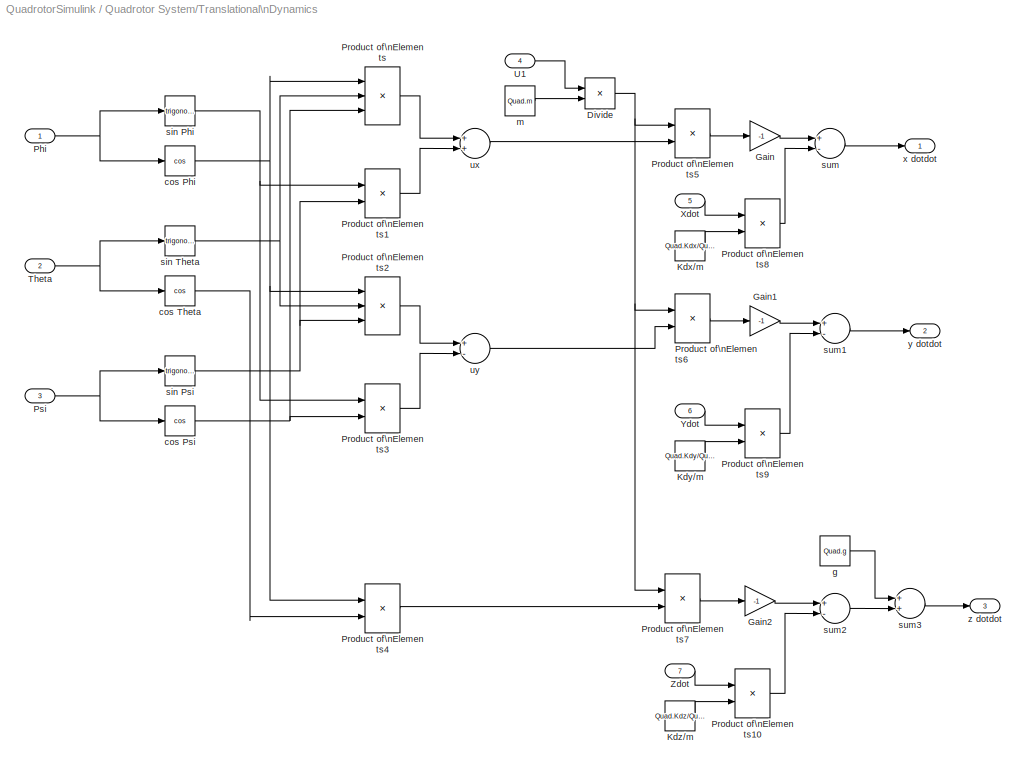
BLOCK [SubSystem] Quadrotor System/Translational\nDynamics
  Ports = [7, 3]
  RequestExecContextInheritance = off
  SID = 235
BLOCK [Product] Quadrotor System/Translational\nDynamics/Divide
  InputSameDT = off
  Inputs = */
  OutDataTypeStr = Inherit: Inherit via internal rule
  Ports = [2, 1]
  RndMeth = Floor
  SID = 243
  SaturateOnIntegerOverflow = off
BLOCK [Gain] Quadrotor System/Translational\nDynamics/Gain
  Gain = -1
  OutDataTypeStr = Inherit: Inherit via internal rule
  ParamDataTypeStr = Inherit: Inherit via internal rule
  SID = 244
  SaturateOnIntegerOverflow = off
BLOCK [Gain] Quadrotor System/Translational\nDynamics/Gain1
  Gain = -1
  OutDataTypeStr = Inherit: Inherit via internal rule
  ParamDataTypeStr = Inherit: Inherit via internal rule
  SID = 245
  SaturateOnIntegerOverflow = off
BLOCK [Gain] Quadrotor System/Translational\nDynamics/Gain2
  Gain = -1
  OutDataTypeStr = Inherit: Inherit via internal rule
  ParamDataTypeStr = Inherit: Inherit via internal rule
  SID = 246
  SaturateOnIntegerOverflow = off
BLOCK [Constant] Quadrotor System/Translational\nDynamics/Kdx//m
  SID = 247
  Value = Quad.Kdx/Quad.m
BLOCK [Constant] Quadrotor System/Translational\nDynamics/Kdy//m
  SID = 248
  Value = Quad.Kdy/Quad.m
BLOCK [Constant] Quadrotor System/Translational\nDynamics/Kdz//m
  SID = 249
  Value = Quad.Kdz/Quad.m
BLOCK [Inport] Quadrotor System/Translational\nDynamics/Phi
  IconDisplay = Port number
  SID = 236
BLOCK [Product] Quadrotor System/Translational\nDynamics/Product of\nElements
  InputSameDT = off
  Inputs = 3
  OutDataTypeStr = Inherit: Inherit via internal rule
  Ports = [3, 1]
  RndMeth = Floor
  SID = 250
  SaturateOnIntegerOverflow = off
BLOCK [Product] Quadrotor System/Translational\nDynamics/Product of\nElements1
  InputSameDT = off
  OutDataTypeStr = Inherit: Inherit via internal rule
  Ports = [2, 1]
  RndMeth = Floor
  SID = 251
  SaturateOnIntegerOverflow = off
BLOCK [Product] Quadrotor System/Translational\nDynamics/Product of\nElements10
  InputSameDT = off
  OutDataTypeStr = Inherit: Inherit via internal rule
  Ports = [2, 1]
  RndMeth = Floor
  SID = 252
  SaturateOnIntegerOverflow = off
BLOCK [Product] Quadrotor System/Translational\nDynamics/Product of\nElements2
  InputSameDT = off
  Inputs = 3
  OutDataTypeStr = Inherit: Inherit via internal rule
  Ports = [3, 1]
  RndMeth = Floor
  SID = 253
  SaturateOnIntegerOverflow = off
BLOCK [Product] Quadrotor System/Translational\nDynamics/Product of\nElements3
  InputSameDT = off
  OutDataTypeStr = Inherit: Inherit via internal rule
  Ports = [2, 1]
  RndMeth = Floor
  SID = 254
  SaturateOnIntegerOverflow = off
BLOCK [Product] Quadrotor System/Translational\nDynamics/Product of\nElements4
  InputSameDT = off
  OutDataTypeStr = Inherit: Inherit via internal rule
  Ports = [2, 1]
  RndMeth = Floor
  SID = 255
  SaturateOnIntegerOverflow = off
BLOCK [Product] Quadrotor System/Translational\nDynamics/Product of\nElements5
  InputSameDT = off
  OutDataTypeStr = Inherit: Inherit via internal rule
  Ports = [2, 1]
  RndMeth = Floor
  SID = 256
  SaturateOnIntegerOverflow = off
BLOCK [Product] Quadrotor System/Translational\nDynamics/Product of\nElements6
  InputSameDT = off
  OutDataTypeStr = Inherit: Inherit via internal rule
  Ports = [2, 1]
  RndMeth = Floor
  SID = 257
  SaturateOnIntegerOverflow = off
BLOCK [Product] Quadrotor System/Translational\nDynamics/Product of\nElements7
  InputSameDT = off
  OutDataTypeStr = Inherit: Inherit via internal rule
  Ports = [2, 1]
  RndMeth = Floor
  SID = 258
  SaturateOnIntegerOverflow = off
BLOCK [Product] Quadrotor System/Translational\nDynamics/Product of\nElements8
  InputSameDT = off
  OutDataTypeStr = Inherit: Inherit via internal rule
  Ports = [2, 1]
  RndMeth = Floor
  SID = 259
  SaturateOnIntegerOverflow = off
BLOCK [Product] Quadrotor System/Translational\nDynamics/Product of\nElements9
  InputSameDT = off
  OutDataTypeStr = Inherit: Inherit via internal rule
  Ports = [2, 1]
  RndMeth = Floor
  SID = 260
  SaturateOnIntegerOverflow = off
BLOCK [Inport] Quadrotor System/Translational\nDynamics/Psi
  IconDisplay = Port number
  Port = 3
  SID = 238
BLOCK [Inport] Quadrotor System/Translational\nDynamics/Theta
  IconDisplay = Port number
  Port = 2
  SID = 237
BLOCK [Inport] Quadrotor System/Translational\nDynamics/U1
  IconDisplay = Port number
  Port = 4
  SID = 239
BLOCK [Inport] Quadrotor System/Translational\nDynamics/Xdot
  IconDisplay = Port number
  Port = 5
  SID = 240
BLOCK [Inport] Quadrotor System/Translational\nDynamics/Ydot
  IconDisplay = Port number
  Port = 6
  SID = 241
BLOCK [Inport] Quadrotor System/Translational\nDynamics/Zdot
  IconDisplay = Port number
  Port = 7
  SID = 242
BLOCK [Trigonometry] Quadrotor System/Translational\nDynamics/cos Phi
  Operator = cos
  Ports = [1, 1]
  SID = 261
BLOCK [Trigonometry] Quadrotor System/Translational\nDynamics/cos Psi
  Operator = cos
  Ports = [1, 1]
  SID = 262
BLOCK [Trigonometry] Quadrotor System/Translational\nDynamics/cos Theta
  Operator = cos
  Ports = [1, 1]
  SID = 263
BLOCK [Constant] Quadrotor System/Translational\nDynamics/g
  SID = 264
  Value = Quad.g
BLOCK [Constant] Quadrotor System/Translational\nDynamics/m
  SID = 265
  Value = Quad.m
BLOCK [Trigonometry] Quadrotor System/Translational\nDynamics/sin Phi
  Ports = [1, 1]
  SID = 266
BLOCK [Trigonometry] Quadrotor System/Translational\nDynamics/sin Psi
  Ports = [1, 1]
  SID = 267
BLOCK [Trigonometry] Quadrotor System/Translational\nDynamics/sin Theta
  Ports = [1, 1]
  SID = 268
BLOCK [Sum] Quadrotor System/Translational\nDynamics/sum
  InputSameDT = off
  Inputs = +-
  OutDataTypeStr = Inherit: Inherit via internal rule
  Ports = [2, 1]
  SID = 269
  SaturateOnIntegerOverflow = off
BLOCK [Sum] Quadrotor System/Translational\nDynamics/sum1
  InputSameDT = off
  Inputs = +-
  OutDataTypeStr = Inherit: Inherit via internal rule
  Ports = [2, 1]
  SID = 270
  SaturateOnIntegerOverflow = off
BLOCK [Sum] Quadrotor System/Translational\nDynamics/sum2
  InputSameDT = off
  Inputs = +-
  OutDataTypeStr = Inherit: Inherit via internal rule
  Ports = [2, 1]
  SID = 271
  SaturateOnIntegerOverflow = off
BLOCK [Sum] Quadrotor System/Translational\nDynamics/sum3
  InputSameDT = off
  OutDataTypeStr = Inherit: Inherit via internal rule
  Ports = [2, 1]
  SID = 272
  SaturateOnIntegerOverflow = off
BLOCK [Sum] Quadrotor System/Translational\nDynamics/ux
  InputSameDT = off
  OutDataTypeStr = Inherit: Inherit via internal rule
  Ports = [2, 1]
  SID = 273
  SaturateOnIntegerOverflow = off
BLOCK [Sum] Quadrotor System/Translational\nDynamics/uy
  InputSameDT = off
  Inputs = +-
  OutDataTypeStr = Inherit: Inherit via internal rule
  Ports = [2, 1]
  SID = 274
  SaturateOnIntegerOverflow = off
BLOCK [Outport] Quadrotor System/Translational\nDynamics/x dotdot
  IconDisplay = Port number
  SID = 275
BLOCK [Outport] Quadrotor System/Translational\nDynamics/y dotdot
  IconDisplay = Port number
  Port = 2
  SID = 276
BLOCK [Outport] Quadrotor System/Translational\nDynamics/z dotdot
  IconDisplay = Port number
  Port = 3
  SID = 277
BLOCK [Inport] Quadrotor System/U1
  IconDisplay = Port number
  SID = 117
BLOCK [Inport] Quadrotor System/U2
  IconDisplay = Port number
  Port = 2
  SID = 118
BLOCK [Inport] Quadrotor System/U3
  IconDisplay = Port number
  Port = 3
  SID = 119
BLOCK [Inport] Quadrotor System/U4
  IconDisplay = Port number
  Port = 4
  SID = 120
BLOCK [Outport] Quadrotor System/X
  IconDisplay = Port number
  Port = 5
  SID = 285
BLOCK [Integrator] Quadrotor System/X dot
  Ports = [1, 1]
  SID = 278
BLOCK [Outport] Quadrotor System/Y
  IconDisplay = Port number
  Port = 6
  SID = 286
BLOCK [Integrator] Quadrotor System/Y dot
  Ports = [1, 1]
  SID = 279
BLOCK [Outport] Quadrotor System/Z
  IconDisplay = Port number
  SID = 281
BLOCK [Integrator] Quadrotor System/Z dot
  Ports = [1, 1]
  SID = 280
BLOCK [Outport] Quadrotor System/p
  IconDisplay = Port number
  Port = 7
  SID = 287
BLOCK [Outport] Quadrotor System/q
  IconDisplay = Port number
  Port = 8
  SID = 288
BLOCK [Outport] Quadrotor System/r
  IconDisplay = Port number
  Port = 9
  SID = 289
BLOCK [ToWorkspace] Theta
  MaxDataPoints = inf
  Ports = [1]
  SID = 290
  SampleTime = -1
  SaveFormat = Structure
  VariableName = Theta_out
BLOCK [SubSystem] Translational Position\nPID Controller
  Ports = [5, 2]
  RequestExecContextInheritance = off
  SID = 291
BLOCK [SubSystem] Translational Position\nPID Controller/Desired Position\nGF to BF
  Ports = [3, 2]
  RequestExecContextInheritance = off
  SID = 297
BLOCK [Product] Translational Position\nPID Controller/Desired Position\nGF to BF/Product
  InputSameDT = off
  OutDataTypeStr = Inherit: Inherit via internal rule
  Ports = [2, 1]
  SID = 301
  SaturateOnIntegerOverflow = off
BLOCK [Product] Translational Position\nPID Controller/Desired Position\nGF to BF/Product1
  InputSameDT = off
  OutDataTypeStr = Inherit: Inherit via internal rule
  Ports = [2, 1]
  SID = 302
  SaturateOnIntegerOverflow = off
BLOCK [Product] Translational Position\nPID Controller/Desired Position\nGF to BF/Product2
  InputSameDT = off
  OutDataTypeStr = Inherit: Inherit via internal rule
  Ports = [2, 1]
  SID = 303
  SaturateOnIntegerOverflow = off
BLOCK [Product] Translational Position\nPID Controller/Desired Position\nGF to BF/Product3
  InputSameDT = off
  OutDataTypeStr = Inherit: Inherit via internal rule
  Ports = [2, 1]
  SID = 304
  SaturateOnIntegerOverflow = off
BLOCK [Inport] Translational Position\nPID Controller/Desired Position\nGF to BF/Psi
  IconDisplay = Port number
  Port = 3
  SID = 300
BLOCK [Sum] Translational Position\nPID Controller/Desired Position\nGF to BF/Sum
  InputSameDT = off
  OutDataTypeStr = Inherit: Inherit via internal rule
  Ports = [2, 1]
  SID = 305
  SaturateOnIntegerOverflow = off
BLOCK [Sum] Translational Position\nPID Controller/Desired Position\nGF to BF/Sum2
  InputSameDT = off
  Inputs = +-
  OutDataTypeStr = Inherit: Inherit via internal rule
  Ports = [2, 1]
  SID = 306
  SaturateOnIntegerOverflow = off
BLOCK [Outport] Translational Position\nPID Controller/Desired Position\nGF to BF/X Bf 
  IconDisplay = Port number
  SID = 309
BLOCK [Inport] Translational Position\nPID Controller/Desired Position\nGF to BF/X GF
  IconDisplay = Port number
  SID = 298
BLOCK [Outport] Translational Position\nPID Controller/Desired Position\nGF to BF/Y Bf
  IconDisplay = Port number
  Port = 2
  SID = 310
BLOCK [Inport] Translational Position\nPID Controller/Desired Position\nGF to BF/Y GF
  IconDisplay = Port number
  Port = 2
  SID = 299
BLOCK [Trigonometry] Translational Position\nPID Controller/Desired Position\nGF to BF/sin1
  Operator = cos
  Ports = [1, 1]
  SID = 307
BLOCK [Trigonometry] Translational Position\nPID Controller/Desired Position\nGF to BF/sin2
  Ports = [1, 1]
  SID = 308
BLOCK [Outport] Translational Position\nPID Controller/Phi Desired
  IconDisplay = Port number
  Port = 2
  SID = 352
BLOCK [SubSystem] Translational Position\nPID Controller/Position\nGF to BF
  Ports = [3, 2]
  RequestExecContextInheritance = off
  SID = 311
BLOCK [Product] Translational Position\nPID Controller/Position\nGF to BF/Product
  InputSameDT = off
  OutDataTypeStr = Inherit: Inherit via internal rule
  Ports = [2, 1]
  SID = 315
  SaturateOnIntegerOverflow = off
BLOCK [Product] Translational Position\nPID Controller/Position\nGF to BF/Product1
  InputSameDT = off
  OutDataTypeStr = Inherit: Inherit via internal rule
  Ports = [2, 1]
  SID = 316
  SaturateOnIntegerOverflow = off
BLOCK [Product] Translational Position\nPID Controller/Position\nGF to BF/Product2
  InputSameDT = off
  OutDataTypeStr = Inherit: Inherit via internal rule
  Ports = [2, 1]
  SID = 317
  SaturateOnIntegerOverflow = off
BLOCK [Product] Translational Position\nPID Controller/Position\nGF to BF/Product3
  InputSameDT = off
  OutDataTypeStr = Inherit: Inherit via internal rule
  Ports = [2, 1]
  SID = 318
  SaturateOnIntegerOverflow = off
BLOCK [Inport] Translational Position\nPID Controller/Position\nGF to BF/Psi
  IconDisplay = Port number
  Port = 3
  SID = 314
BLOCK [Sum] Translational Position\nPID Controller/Position\nGF to BF/Sum
  InputSameDT = off
  OutDataTypeStr = Inherit: Inherit via internal rule
  Ports = [2, 1]
  SID = 319
  SaturateOnIntegerOverflow = off
BLOCK [Sum] Translational Position\nPID Controller/Position\nGF to BF/Sum2
  InputSameDT = off
  Inputs = +-
  OutDataTypeStr = Inherit: Inherit via internal rule
  Ports = [2, 1]
  SID = 320
  SaturateOnIntegerOverflow = off
BLOCK [Outport] Translational Position\nPID Controller/Position\nGF to BF/X Bf 
  IconDisplay = Port number
  SID = 323
BLOCK [Inport] Translational Position\nPID Controller/Position\nGF to BF/X GF
  IconDisplay = Port number
  SID = 312
BLOCK [Outport] Translational Position\nPID Controller/Position\nGF to BF/Y Bf
  IconDisplay = Port number
  Port = 2
  SID = 324
BLOCK [Inport] Translational Position\nPID Controller/Position\nGF to BF/Y GF
  IconDisplay = Port number
  Port = 2
  SID = 313
BLOCK [Trigonometry] Translational Position\nPID Controller/Position\nGF to BF/sin1
  Operator = cos
  Ports = [1, 1]
  SID = 321
BLOCK [Trigonometry] Translational Position\nPID Controller/Position\nGF to BF/sin2
  Ports = [1, 1]
  SID = 322
BLOCK [Inport] Translational Position\nPID Controller/Psi
  IconDisplay = Port number
  Port = 3
  SID = 294
BLOCK [Outport] Translational Position\nPID Controller/Theta Desired
  IconDisplay = Port number
  SID = 351
BLOCK [Inport] Translational Position\nPID Controller/X
  IconDisplay = Port number
  Port = 4
  SID = 295
BLOCK [SubSystem] Translational Position\nPID Controller/X PID
  Ports = [2, 1]
  RequestExecContextInheritance = off
  SID = 325
BLOCK [Derivative] Translational Position\nPID Controller/X PID/Derivative
  SID = 328
BLOCK [Integrator] Translational Position\nPID Controller/X PID/Integrator
  Ports = [1, 1]
  SID = 329
BLOCK [Gain] Translational Position\nPID Controller/X PID/Kd
  Gain = Quad.X_KD
  OutDataTypeStr = Inherit: Inherit via internal rule
  ParamDataTypeStr = Inherit: Inherit via internal rule
  SID = 330
  SaturateOnIntegerOverflow = off
BLOCK [Gain] Translational Position\nPID Controller/X PID/Ki
  Gain = Quad.X_KI
  OutDataTypeStr = Inherit: Inherit via internal rule
  ParamDataTypeStr = Inherit: Inherit via internal rule
  SID = 331
  SaturateOnIntegerOverflow = off
BLOCK [Gain] Translational Position\nPID Controller/X PID/Kp
  Gain = Quad.X_KP
  OutDataTypeStr = Inherit: Inherit via internal rule
  ParamDataTypeStr = Inherit: Inherit via internal rule
  SID = 332
  SaturateOnIntegerOverflow = off
BLOCK [Saturate] Translational Position\nPID Controller/X PID/Saturation1
  InputPortMap = u0
  LowerLimit = -Quad.theta_max
  Ports = [1, 1]
  SID = 333
  UpperLimit = Quad.theta_max
BLOCK [Saturate] Translational Position\nPID Controller/X PID/Saturation2
  InputPortMap = u0
  LowerLimit = -Quad.theta_max
  Ports = [1, 1]
  SID = 334
  UpperLimit = Quad.theta_max
BLOCK [Sum] Translational Position\nPID Controller/X PID/Sum
  InputSameDT = off
  Inputs = ---
  OutDataTypeStr = Inherit: Inherit via internal rule
  Ports = [3, 1]
  SID = 335
  SaturateOnIntegerOverflow = off
BLOCK [Outport] Translational Position\nPID Controller/X PID/Theta\nDesired
  IconDisplay = Port number
  SID = 337
BLOCK [Inport] Translational Position\nPID Controller/X PID/X
  IconDisplay = Port number
  Port = 2
  SID = 327
BLOCK [Sum] Translational Position\nPID Controller/X PID/X Error
  InputSameDT = off
  Inputs = +-
  OutDataTypeStr = Inherit: Inherit via internal rule
  Ports = [2, 1]
  SID = 336
  SaturateOnIntegerOverflow = off
BLOCK [Inport] Translational Position\nPID Controller/X PID/X desired
  IconDisplay = Port number
  SID = 326
BLOCK [Inport] Translational Position\nPID Controller/X desired
  IconDisplay = Port number
  SID = 292
BLOCK [Inport] Translational Position\nPID Controller/Y
  IconDisplay = Port number
  Port = 5
  SID = 296
BLOCK [SubSystem] Translational Position\nPID Controller/Y PID
  Ports = [2, 1]
  RequestExecContextInheritance = off
  SID = 338
BLOCK [Derivative] Translational Position\nPID Controller/Y PID/Derivative
  SID = 341
BLOCK [Integrator] Translational Position\nPID Controller/Y PID/Integrator
  Ports = [1, 1]
  SID = 342
BLOCK [Gain] Translational Position\nPID Controller/Y PID/Kd
  Gain = Quad.Y_KD
  OutDataTypeStr = Inherit: Inherit via internal rule
  ParamDataTypeStr = Inherit: Inherit via internal rule
  SID = 343
  SaturateOnIntegerOverflow = off
BLOCK [Gain] Translational Position\nPID Controller/Y PID/Ki
  Gain = Quad.Y_KI
  OutDataTypeStr = Inherit: Inherit via internal rule
  ParamDataTypeStr = Inherit: Inherit via internal rule
  SID = 344
  SaturateOnIntegerOverflow = off
BLOCK [Gain] Translational Position\nPID Controller/Y PID/Kp
  Gain = Quad.Y_KP
  OutDataTypeStr = Inherit: Inherit via internal rule
  ParamDataTypeStr = Inherit: Inherit via internal rule
  SID = 345
  SaturateOnIntegerOverflow = off
BLOCK [Outport] Translational Position\nPID Controller/Y PID/Phi\nDesired
  IconDisplay = Port number
  SID = 350
BLOCK [Saturate] Translational Position\nPID Controller/Y PID/Saturation1
  InputPortMap = u0
  LowerLimit = -Quad.phi_max
  Ports = [1, 1]
  SID = 346
  UpperLimit = Quad.phi_max
BLOCK [Saturate] Translational Position\nPID Controller/Y PID/Saturation2
  InputPortMap = u0
  LowerLimit = -Quad.phi_max
  Ports = [1, 1]
  SID = 347
  UpperLimit = Quad.phi_max
BLOCK [Sum] Translational Position\nPID Controller/Y PID/Sum
  InputSameDT = off
  Inputs = +++
  OutDataTypeStr = Inherit: Inherit via internal rule
  Ports = [3, 1]
  SID = 348
  SaturateOnIntegerOverflow = off
BLOCK [Inport] Translational Position\nPID Controller/Y PID/Y
  IconDisplay = Port number
  Port = 2
  SID = 340
BLOCK [Sum] Translational Position\nPID Controller/Y PID/Y Error
  InputSameDT = off
  Inputs = +-
  OutDataTypeStr = Inherit: Inherit via internal rule
  Ports = [2, 1]
  SID = 349
  SaturateOnIntegerOverflow = off
BLOCK [Inport] Translational Position\nPID Controller/Y PID/Y desired
  IconDisplay = Port number
  SID = 339
BLOCK [Inport] Translational Position\nPID Controller/Y desired
  IconDisplay = Port number
  Port = 2
  SID = 293
BLOCK [ToWorkspace] X
  MaxDataPoints = inf
  Ports = [1]
  SID = 353
  SampleTime = -1
  SaveFormat = Structure
  VariableName = X_out
BLOCK [Step] X desired
  After = 0.5
  SID = 354
  SampleTime = 0
BLOCK [ToWorkspace] Xd
  MaxDataPoints = inf
  Ports = [1]
  SID = 355
  SampleTime = -1
  SaveFormat = Structure
  VariableName = X_desired
BLOCK [ToWorkspace] Y
  MaxDataPoints = inf
  Ports = [1]
  SID = 356
  SampleTime = -1
  SaveFormat = Structure
  VariableName = Y_out
BLOCK [Step] Y desired
  After = 0
  SID = 357
  SampleTime = 0
BLOCK [ToWorkspace] Yd
  MaxDataPoints = inf
  Ports = [1]
  SID = 358
  SampleTime = -1
  SaveFormat = Structure
  VariableName = Y_desired
BLOCK [ToWorkspace] Z
  MaxDataPoints = inf
  Ports = [1]
  SID = 359
  SampleTime = -1
  SaveFormat = Structure
  VariableName = Z_out
BLOCK [Step] Z desired
  After = .5
  SID = 360
  SampleTime = 0
BLOCK [ToWorkspace] Zd
  MaxDataPoints = inf
  Ports = [1]
  SID = 361
  SampleTime = -1
  SaveFormat = Structure
  VariableName = Z_desired
LINE Angular Rate \nPID Controller/p PID/Derivative:1 -> Angular Rate \nPID Controller/p PID/Kd:1
LINE Angular Rate \nPID Controller/p PID/Integrator:1 -> Angular Rate \nPID Controller/p PID/Ki:1
LINE Angular Rate \nPID Controller/p PID/Kd:1 -> Angular Rate \nPID Controller/p PID/Sum:3
LINE Angular Rate \nPID Controller/p PID/Ki:1 -> Angular Rate \nPID Controller/p PID/Saturation1:1
LINE Angular Rate \nPID Controller/p PID/Kp:1 -> Angular Rate \nPID Controller/p PID/Sum:1
NET Angular Rate \nPID Controller/p PID/Psi Error:1 -> Angular Rate \nPID Controller/p PID/Integrator:1, Angular Rate \nPID Controller/p PID/Kp:1
LINE Angular Rate \nPID Controller/p PID/Saturation1:1 -> Angular Rate \nPID Controller/p PID/Sum:2
LINE Angular Rate \nPID Controller/p PID/Sum:1 -> Angular Rate \nPID Controller/p PID/U2:1
LINE Angular Rate \nPID Controller/p PID/p desired:1 -> Angular Rate \nPID Controller/p PID/Psi Error:1
NET Angular Rate \nPID Controller/p PID/p:1 -> Angular Rate \nPID Controller/p PID/Derivative:1, Angular Rate \nPID Controller/p PID/Psi Error:2
LINE Angular Rate \nPID Controller/p PID:1 -> Angular Rate \nPID Controller/U2:1
LINE Angular Rate \nPID Controller/p desired:1 -> Angular Rate \nPID Controller/p PID:2
LINE Angular Rate \nPID Controller/p:1 -> Angular Rate \nPID Controller/p PID:1
LINE Angular Rate \nPID Controller/q PID/Derivative:1 -> Angular Rate \nPID Controller/q PID/Kd:1
LINE Angular Rate \nPID Controller/q PID/Integrator:1 -> Angular Rate \nPID Controller/q PID/Ki:1
LINE Angular Rate \nPID Controller/q PID/Kd:1 -> Angular Rate \nPID Controller/q PID/Sum:3
LINE Angular Rate \nPID Controller/q PID/Ki:1 -> Angular Rate \nPID Controller/q PID/Saturation1:1
LINE Angular Rate \nPID Controller/q PID/Kp:1 -> Angular Rate \nPID Controller/q PID/Sum:1
LINE Angular Rate \nPID Controller/q PID/Saturation1:1 -> Angular Rate \nPID Controller/q PID/Sum:2
LINE Angular Rate \nPID Controller/q PID/Sum:1 -> Angular Rate \nPID Controller/q PID/U3:1
NET Angular Rate \nPID Controller/q PID/q Error:1 -> Angular Rate \nPID Controller/q PID/Integrator:1, Angular Rate \nPID Controller/q PID/Kp:1, Angular Rate \nPID Controller/q PID/Scope:1
LINE Angular Rate \nPID Controller/q PID/q desired:1 -> Angular Rate \nPID Controller/q PID/q Error:1
NET Angular Rate \nPID Controller/q PID/q:1 -> Angular Rate \nPID Controller/q PID/Derivative:1, Angular Rate \nPID Controller/q PID/q Error:2
LINE Angular Rate \nPID Controller/q PID:1 -> Angular Rate \nPID Controller/U3:1
LINE Angular Rate \nPID Controller/q desired:1 -> Angular Rate \nPID Controller/q PID:2
LINE Angular Rate \nPID Controller/q:1 -> Angular Rate \nPID Controller/q PID:1
LINE Angular Rate \nPID Controller/r PID/Derivative:1 -> Angular Rate \nPID Controller/r PID/Kd:1
LINE Angular Rate \nPID Controller/r PID/Integrator:1 -> Angular Rate \nPID Controller/r PID/Ki:1
LINE Angular Rate \nPID Controller/r PID/Kd:1 -> Angular Rate \nPID Controller/r PID/Sum:3
LINE Angular Rate \nPID Controller/r PID/Kp:1 -> Angular Rate \nPID Controller/r PID/Sum:1
NET Angular Rate \nPID Controller/r PID/Psi Error:1 -> Angular Rate \nPID Controller/r PID/Integrator:1, Angular Rate \nPID Controller/r PID/Kp:1
LINE Angular Rate \nPID Controller/r PID/Sum:1 -> Angular Rate \nPID Controller/r PID/U4:1
LINE Angular Rate \nPID Controller/r PID/r desired:1 -> Angular Rate \nPID Controller/r PID/Psi Error:1
NET Angular Rate \nPID Controller/r PID/r:1 -> Angular Rate \nPID Controller/r PID/Derivative:1, Angular Rate \nPID Controller/r PID/Psi Error:2
LINE Angular Rate \nPID Controller/r PID:1 -> Angular Rate \nPID Controller/U4:1
LINE Angular Rate \nPID Controller/r desired:1 -> Angular Rate \nPID Controller/r PID:2
LINE Angular Rate \nPID Controller/r:1 -> Angular Rate \nPID Controller/r PID:1
LINE Angular Rate \nPID Controller:1 -> Quadrotor System:2
LINE Angular Rate \nPID Controller:2 -> Quadrotor System:3
LINE Angular Rate \nPID Controller:3 -> Quadrotor System:4
LINE Attitude//Altitude\nPID Controller/Phi PID/Derivative:1 -> Attitude//Altitude\nPID Controller/Phi PID/Kd:1
LINE Attitude//Altitude\nPID Controller/Phi PID/Integrator:1 -> Attitude//Altitude\nPID Controller/Phi PID/Ki:1
LINE Attitude//Altitude\nPID Controller/Phi PID/Kd:1 -> Attitude//Altitude\nPID Controller/Phi PID/Sum:3
LINE Attitude//Altitude\nPID Controller/Phi PID/Kp:1 -> Attitude//Altitude\nPID Controller/Phi PID/Sum:1
LINE Attitude//Altitude\nPID Controller/Phi PID/Phi desired:1 -> Attitude//Altitude\nPID Controller/Phi PID/Psi Error:1
NET Attitude//Altitude\nPID Controller/Phi PID/Phi:1 -> Attitude//Altitude\nPID Controller/Phi PID/Derivative:1, Attitude//Altitude\nPID Controller/Phi PID/Psi Error:2
NET Attitude//Altitude\nPID Controller/Phi PID/Psi Error:1 -> Attitude//Altitude\nPID Controller/Phi PID/Integrator:1, Attitude//Altitude\nPID Controller/Phi PID/Kp:1
LINE Attitude//Altitude\nPID Controller/Phi PID/Sum:1 -> Attitude//Altitude\nPID Controller/Phi PID/p desired:1
LINE Attitude//Altitude\nPID Controller/Phi PID:1 -> Attitude//Altitude\nPID Controller/p desired:1
LINE Attitude//Altitude\nPID Controller/Phi desired:1 -> Attitude//Altitude\nPID Controller/Phi PID:2
NET Attitude//Altitude\nPID Controller/Phi:1 -> Attitude//Altitude\nPID Controller/Phi PID:1, Attitude//Altitude\nPID Controller/Z PID:3
LINE Attitude//Altitude\nPID Controller/Psi PID/Derivative:1 -> Attitude//Altitude\nPID Controller/Psi PID/Kd:1
LINE Attitude//Altitude\nPID Controller/Psi PID/Integrator:1 -> Attitude//Altitude\nPID Controller/Psi PID/Ki:1
LINE Attitude//Altitude\nPID Controller/Psi PID/Kd:1 -> Attitude//Altitude\nPID Controller/Psi PID/Sum:3
LINE Attitude//Altitude\nPID Controller/Psi PID/Kp:1 -> Attitude//Altitude\nPID Controller/Psi PID/Sum:1
NET Attitude//Altitude\nPID Controller/Psi PID/Psi Error:1 -> Attitude//Altitude\nPID Controller/Psi PID/Integrator:1, Attitude//Altitude\nPID Controller/Psi PID/Kp:1
LINE Attitude//Altitude\nPID Controller/Psi PID/Psi desired:1 -> Attitude//Altitude\nPID Controller/Psi PID/Psi Error:1
NET Attitude//Altitude\nPID Controller/Psi PID/Psi:1 -> Attitude//Altitude\nPID Controller/Psi PID/Derivative:1, Attitude//Altitude\nPID Controller/Psi PID/Psi Error:2
LINE Attitude//Altitude\nPID Controller/Psi PID/Sum:1 -> Attitude//Altitude\nPID Controller/Psi PID/r desired:1
LINE Attitude//Altitude\nPID Controller/Psi PID:1 -> Attitude//Altitude\nPID Controller/r desired:1
LINE Attitude//Altitude\nPID Controller/Psi desired:1 -> Attitude//Altitude\nPID Controller/Psi PID:2
LINE Attitude//Altitude\nPID Controller/Psi:1 -> Attitude//Altitude\nPID Controller/Psi PID:1
LINE Attitude//Altitude\nPID Controller/Theta PID/Derivative:1 -> Attitude//Altitude\nPID Controller/Theta PID/Kd:1
LINE Attitude//Altitude\nPID Controller/Theta PID/Integrator:1 -> Attitude//Altitude\nPID Controller/Theta PID/Ki:1
LINE Attitude//Altitude\nPID Controller/Theta PID/Kd:1 -> Attitude//Altitude\nPID Controller/Theta PID/Sum:3
LINE Attitude//Altitude\nPID Controller/Theta PID/Kp:1 -> Attitude//Altitude\nPID Controller/Theta PID/Sum:1
LINE Attitude//Altitude\nPID Controller/Theta PID/Sum:1 -> Attitude//Altitude\nPID Controller/Theta PID/q desired:1
NET Attitude//Altitude\nPID Controller/Theta PID/Theta Error:1 -> Attitude//Altitude\nPID Controller/Theta PID/Integrator:1, Attitude//Altitude\nPID Controller/Theta PID/Kp:1, Attitude//Altitude\nPID Controller/Theta PID/Scope:1
LINE Attitude//Altitude\nPID Controller/Theta PID/Theta desired:1 -> Attitude//Altitude\nPID Controller/Theta PID/Theta Error:1
NET Attitude//Altitude\nPID Controller/Theta PID/Theta:1 -> Attitude//Altitude\nPID Controller/Theta PID/Derivative:1, Attitude//Altitude\nPID Controller/Theta PID/Theta Error:2
LINE Attitude//Altitude\nPID Controller/Theta PID:1 -> Attitude//Altitude\nPID Controller/q desired:1
LINE Attitude//Altitude\nPID Controller/Theta desired:1 -> Attitude//Altitude\nPID Controller/Theta PID:2
NET Attitude//Altitude\nPID Controller/Theta:1 -> Attitude//Altitude\nPID Controller/Theta PID:1, Attitude//Altitude\nPID Controller/Z PID:4
LINE Attitude//Altitude\nPID Controller/Z PID/Derivative:1 -> Attitude//Altitude\nPID Controller/Z PID/Kd:1
LINE Attitude//Altitude\nPID Controller/Z PID/Divide:1 -> Attitude//Altitude\nPID Controller/Z PID/U1:1
LINE Attitude//Altitude\nPID Controller/Z PID/Integrator:1 -> Attitude//Altitude\nPID Controller/Z PID/Ki:1
LINE Attitude//Altitude\nPID Controller/Z PID/Kd:1 -> Attitude//Altitude\nPID Controller/Z PID/Sum:3
LINE Attitude//Altitude\nPID Controller/Z PID/Kp:1 -> Attitude//Altitude\nPID Controller/Z PID/Sum:1
LINE Attitude//Altitude\nPID Controller/Z PID/Phi:1 -> Attitude//Altitude\nPID Controller/Z PID/cos Phi:1
LINE Attitude//Altitude\nPID Controller/Z PID/Product:1 -> Attitude//Altitude\nPID Controller/Z PID/Divide:2
LINE Attitude//Altitude\nPID Controller/Z PID/Sum:1 -> Attitude//Altitude\nPID Controller/Z PID/Divide:1
LINE Attitude//Altitude\nPID Controller/Z PID/Theta:1 -> Attitude//Altitude\nPID Controller/Z PID/cos Theta:1
LINE Attitude//Altitude\nPID Controller/Z PID/Z desired:1 -> Attitude//Altitude\nPID Controller/Z PID/ez:1
NET Attitude//Altitude\nPID Controller/Z PID/Z:1 -> Attitude//Altitude\nPID Controller/Z PID/Derivative:1, Attitude//Altitude\nPID Controller/Z PID/ez:2
LINE Attitude//Altitude\nPID Controller/Z PID/cos Phi:1 -> Attitude//Altitude\nPID Controller/Z PID/Product:1
LINE Attitude//Altitude\nPID Controller/Z PID/cos Theta:1 -> Attitude//Altitude\nPID Controller/Z PID/Product:2
NET Attitude//Altitude\nPID Controller/Z PID/ez:1 -> Attitude//Altitude\nPID Controller/Z PID/Integrator:1, Attitude//Altitude\nPID Controller/Z PID/Kp:1
LINE Attitude//Altitude\nPID Controller/Z PID/mg:1 -> Attitude//Altitude\nPID Controller/Z PID/Sum:4
LINE Attitude//Altitude\nPID Controller/Z PID:1 -> Attitude//Altitude\nPID Controller/U1:1
LINE Attitude//Altitude\nPID Controller/Z desired:1 -> Attitude//Altitude\nPID Controller/Z PID:2
LINE Attitude//Altitude\nPID Controller/Z:1 -> Attitude//Altitude\nPID Controller/Z PID:1
LINE Attitude//Altitude\nPID Controller:1 -> Quadrotor System:1
LINE Attitude//Altitude\nPID Controller:2 -> Angular Rate \nPID Controller:2
LINE Attitude//Altitude\nPID Controller:3 -> Angular Rate \nPID Controller:4
LINE Attitude//Altitude\nPID Controller:4 -> Angular Rate \nPID Controller:6
NET Psi desired:1 -> Attitude//Altitude\nPID Controller:8, Psi d:1
LINE Quadrotor System/Act X:1 -> Quadrotor System/X:1
LINE Quadrotor System/Act Y:1 -> Quadrotor System/Y:1
LINE Quadrotor System/Act Z:1 -> Quadrotor System/Z:1
LINE Quadrotor System/Angular Velocities\nTransformation/Phi dot:1 -> Quadrotor System/Angular Velocities\nTransformation/Sum:1
NET Quadrotor System/Angular Velocities\nTransformation/Phi:1 -> Quadrotor System/Angular Velocities\nTransformation/sin1:1, Quadrotor System/Angular Velocities\nTransformation/sin2:1, Quadrotor System/Angular Velocities\nTransformation/sin3:1, Quadrotor System/Angular Velocities\nTransformation/sin5:1
LINE Quadrotor System/Angular Velocities\nTransformation/Product1:1 -> Quadrotor System/Angular Velocities\nTransformation/Sum1:1
LINE Quadrotor System/Angular Velocities\nTransformation/Product2:1 -> Quadrotor System/Angular Velocities\nTransformation/Sum1:2
LINE Quadrotor System/Angular Velocities\nTransformation/Product3:1 -> Quadrotor System/Angular Velocities\nTransformation/Sum2:1
LINE Quadrotor System/Angular Velocities\nTransformation/Product4:1 -> Quadrotor System/Angular Velocities\nTransformation/Sum2:2
LINE Quadrotor System/Angular Velocities\nTransformation/Product:1 -> Quadrotor System/Angular Velocities\nTransformation/Sum:2
NET Quadrotor System/Angular Velocities\nTransformation/Psi dot:1 -> Quadrotor System/Angular Velocities\nTransformation/Product2:3, Quadrotor System/Angular Velocities\nTransformation/Product4:1, Quadrotor System/Angular Velocities\nTransformation/Product:2
LINE Quadrotor System/Angular Velocities\nTransformation/Sum1:1 -> Quadrotor System/Angular Velocities\nTransformation/q:1
LINE Quadrotor System/Angular Velocities\nTransformation/Sum2:1 -> Quadrotor System/Angular Velocities\nTransformation/r:1
LINE Quadrotor System/Angular Velocities\nTransformation/Sum:1 -> Quadrotor System/Angular Velocities\nTransformation/p:1
NET Quadrotor System/Angular Velocities\nTransformation/Theta dot:1 -> Quadrotor System/Angular Velocities\nTransformation/Product1:2, Quadrotor System/Angular Velocities\nTransformation/Product3:1
NET Quadrotor System/Angular Velocities\nTransformation/Theta:1 -> Quadrotor System/Angular Velocities\nTransformation/sin4:1, Quadrotor System/Angular Velocities\nTransformation/sin6:1, Quadrotor System/Angular Velocities\nTransformation/sin:1
LINE Quadrotor System/Angular Velocities\nTransformation/sin1:1 -> Quadrotor System/Angular Velocities\nTransformation/Product1:1
LINE Quadrotor System/Angular Velocities\nTransformation/sin2:1 -> Quadrotor System/Angular Velocities\nTransformation/Product2:1
LINE Quadrotor System/Angular Velocities\nTransformation/sin3:1 -> Quadrotor System/Angular Velocities\nTransformation/Product3:2
LINE Quadrotor System/Angular Velocities\nTransformation/sin4:1 -> Quadrotor System/Angular Velocities\nTransformation/Product2:2
LINE Quadrotor System/Angular Velocities\nTransformation/sin5:1 -> Quadrotor System/Angular Velocities\nTransformation/Product4:2
LINE Quadrotor System/Angular Velocities\nTransformation/sin6:1 -> Quadrotor System/Angular Velocities\nTransformation/Product4:3
LINE Quadrotor System/Angular Velocities\nTransformation/sin:1 -> Quadrotor System/Angular Velocities\nTransformation/Product:1
NET Quadrotor System/Angular Velocities\nTransformation:1 -> Quadrotor System/Rotational Dynamics:1, Quadrotor System/p:1
NET Quadrotor System/Angular Velocities\nTransformation:2 -> Quadrotor System/Rotational Dynamics:2, Quadrotor System/q:1
NET Quadrotor System/Angular Velocities\nTransformation:3 -> Quadrotor System/Rotational Dynamics:3, Quadrotor System/r:1
NET Quadrotor System/Motor Speed \nCalculator/2*KT*l:1 -> Quadrotor System/Motor Speed \nCalculator/Divide1:2, Quadrotor System/Motor Speed \nCalculator/Divide2:2
LINE Quadrotor System/Motor Speed \nCalculator/4*KT:1 -> Quadrotor System/Motor Speed \nCalculator/Divide:2
LINE Quadrotor System/Motor Speed \nCalculator/4*Kd:1 -> Quadrotor System/Motor Speed \nCalculator/Divide3:2
NET Quadrotor System/Motor Speed \nCalculator/Divide1:1 -> Quadrotor System/Motor Speed \nCalculator/Omegasqr2:2, Quadrotor System/Motor Speed \nCalculator/Omegasqr4:2
NET Quadrotor System/Motor Speed \nCalculator/Divide2:1 -> Quadrotor System/Motor Speed \nCalculator/Omegasqr1:2, Quadrotor System/Motor Speed \nCalculator/Omegasqr3:2
NET Quadrotor System/Motor Speed \nCalculator/Divide3:1 -> Quadrotor System/Motor Speed \nCalculator/Omegasqr1:3, Quadrotor System/Motor Speed \nCalculator/Omegasqr2:3, Quadrotor System/Motor Speed \nCalculator/Omegasqr3:3, Quadrotor System/Motor Speed \nCalculator/Omegasqr4:3
NET Quadrotor System/Motor Speed \nCalculator/Divide:1 -> Quadrotor System/Motor Speed \nCalculator/Omegasqr1:1, Quadrotor System/Motor Speed \nCalculator/Omegasqr2:1, Quadrotor System/Motor Speed \nCalculator/Omegasqr3:1, Quadrotor System/Motor Speed \nCalculator/Omegasqr4:1
LINE Quadrotor System/Motor Speed \nCalculator/Jp:1 -> Quadrotor System/Motor Speed \nCalculator/times4:2
NET Quadrotor System/Motor Speed \nCalculator/KT:1 -> Quadrotor System/Motor Speed \nCalculator/times1:1, Quadrotor System/Motor Speed \nCalculator/times2:1, Quadrotor System/Motor Speed \nCalculator/times:1
LINE Quadrotor System/Motor Speed \nCalculator/Kd:1 -> Quadrotor System/Motor Speed \nCalculator/times3:2
LINE Quadrotor System/Motor Speed \nCalculator/OmegaBar:1 -> Quadrotor System/Motor Speed \nCalculator/times4:1
LINE Quadrotor System/Motor Speed \nCalculator/Omegasqr1:1 -> Quadrotor System/Motor Speed \nCalculator/Saturation:1
LINE Quadrotor System/Motor Speed \nCalculator/Omegasqr1cal:1 -> Quadrotor System/Motor Speed \nCalculator/times:2
LINE Quadrotor System/Motor Speed \nCalculator/Omegasqr2:1 -> Quadrotor System/Motor Speed \nCalculator/Saturation1:1
LINE Quadrotor System/Motor Speed \nCalculator/Omegasqr2cal:1 -> Quadrotor System/Motor Speed \nCalculator/times1:2
LINE Quadrotor System/Motor Speed \nCalculator/Omegasqr3:1 -> Quadrotor System/Motor Speed \nCalculator/Saturation3:1
LINE Quadrotor System/Motor Speed \nCalculator/Omegasqr3cal:1 -> Quadrotor System/Motor Speed \nCalculator/times2:2
LINE Quadrotor System/Motor Speed \nCalculator/Omegasqr4:1 -> Quadrotor System/Motor Speed \nCalculator/Saturation2:1
LINE Quadrotor System/Motor Speed \nCalculator/Omegasqr4cal:1 -> Quadrotor System/Motor Speed \nCalculator/times3:1
NET Quadrotor System/Motor Speed \nCalculator/Saturation1:1 -> Quadrotor System/Motor Speed \nCalculator/OmegaBar:2, Quadrotor System/Motor Speed \nCalculator/Omegasqr1cal:2, Quadrotor System/Motor Speed \nCalculator/Omegasqr2cal:1, Quadrotor System/Motor Speed \nCalculator/Omegasqr4cal:2, Quadrotor System/Motor Speed \nCalculator/Scope6:1
NET Quadrotor System/Motor Speed \nCalculator/Saturation2:1 -> Quadrotor System/Motor Speed \nCalculator/OmegaBar:4, Quadrotor System/Motor Speed \nCalculator/Omegasqr1cal:4, Quadrotor System/Motor Speed \nCalculator/Omegasqr2cal:2, Quadrotor System/Motor Speed \nCalculator/Omegasqr4cal:4, Quadrotor System/Motor Speed \nCalculator/Scope4:1
NET Quadrotor System/Motor Speed \nCalculator/Saturation3:1 -> Quadrotor System/Motor Speed \nCalculator/OmegaBar:3, Quadrotor System/Motor Speed \nCalculator/Omegasqr1cal:3, Quadrotor System/Motor Speed \nCalculator/Omegasqr3cal:2, Quadrotor System/Motor Speed \nCalculator/Omegasqr4cal:3, Quadrotor System/Motor Speed \nCalculator/Scope5:1
NET Quadrotor System/Motor Speed \nCalculator/Saturation:1 -> Quadrotor System/Motor Speed \nCalculator/OmegaBar:1, Quadrotor System/Motor Speed \nCalculator/Omegasqr1cal:1, Quadrotor System/Motor Speed \nCalculator/Omegasqr3cal:1, Quadrotor System/Motor Speed \nCalculator/Omegasqr4cal:1, Quadrotor System/Motor Speed \nCalculator/Scope7:1
NET Quadrotor System/Motor Speed \nCalculator/U1:1 -> Quadrotor System/Motor Speed \nCalculator/Divide:1, Quadrotor System/Motor Speed \nCalculator/Scope:1
NET Quadrotor System/Motor Speed \nCalculator/U2:1 -> Quadrotor System/Motor Speed \nCalculator/Divide1:1, Quadrotor System/Motor Speed \nCalculator/Scope8:1
NET Quadrotor System/Motor Speed \nCalculator/U3:1 -> Quadrotor System/Motor Speed \nCalculator/Divide2:1, Quadrotor System/Motor Speed \nCalculator/Scope9:1
NET Quadrotor System/Motor Speed \nCalculator/U4:1 -> Quadrotor System/Motor Speed \nCalculator/Divide3:1, Quadrotor System/Motor Speed \nCalculator/Scope2:1
NET Quadrotor System/Motor Speed \nCalculator/l:1 -> Quadrotor System/Motor Speed \nCalculator/times5:1, Quadrotor System/Motor Speed \nCalculator/times6:1
LINE Quadrotor System/Motor Speed \nCalculator/times1:1 -> Quadrotor System/Motor Speed \nCalculator/times5:2
LINE Quadrotor System/Motor Speed \nCalculator/times2:1 -> Quadrotor System/Motor Speed \nCalculator/times6:2
NET Quadrotor System/Motor Speed \nCalculator/times3:1 -> Quadrotor System/Motor Speed \nCalculator/Scope3:1, Quadrotor System/Motor Speed \nCalculator/U4_2:1
LINE Quadrotor System/Motor Speed \nCalculator/times4:1 -> Quadrotor System/Motor Speed \nCalculator/Omega:1
LINE Quadrotor System/Motor Speed \nCalculator/times5:1 -> Quadrotor System/Motor Speed \nCalculator/U2_2:1
LINE Quadrotor System/Motor Speed \nCalculator/times6:1 -> Quadrotor System/Motor Speed \nCalculator/U3_2:1
NET Quadrotor System/Motor Speed \nCalculator/times:1 -> Quadrotor System/Motor Speed \nCalculator/Scope1:1, Quadrotor System/Motor Speed \nCalculator/U1_2:1
LINE Quadrotor System/Motor Speed \nCalculator:1 -> Quadrotor System/Translational\nDynamics:4
LINE Quadrotor System/Motor Speed \nCalculator:2 -> Quadrotor System/Rotational Dynamics:4
LINE Quadrotor System/Motor Speed \nCalculator:3 -> Quadrotor System/Rotational Dynamics:5
LINE Quadrotor System/Motor Speed \nCalculator:4 -> Quadrotor System/Rotational Dynamics:6
LINE Quadrotor System/Motor Speed \nCalculator:5 -> Quadrotor System/Rotational Dynamics:7
NET Quadrotor System/Phi dot:1 -> Quadrotor System/Angular Velocities\nTransformation:3, Quadrotor System/Phi1:1
NET Quadrotor System/Phi1:1 -> Quadrotor System/Angular Velocities\nTransformation:2, Quadrotor System/Phi:1, Quadrotor System/Translational\nDynamics:1
NET Quadrotor System/Psi dot:1 -> Quadrotor System/Angular Velocities\nTransformation:5, Quadrotor System/Psi1:1
NET Quadrotor System/Psi1:1 -> Quadrotor System/Psi:1, Quadrotor System/Translational\nDynamics:3
LINE Quadrotor System/Rotational Dynamics/(Jx-Jy)//Jz:1 -> Quadrotor System/Rotational Dynamics/Product of\nElements6:1
LINE Quadrotor System/Rotational Dynamics/(Jy-Jz)//Jx:1 -> Quadrotor System/Rotational Dynamics/Product of\nElements:1
LINE Quadrotor System/Rotational Dynamics/(Jz-Jx)//Jy:1 -> Quadrotor System/Rotational Dynamics/Product of\nElements3:1
LINE Quadrotor System/Rotational Dynamics/1//Jz:1 -> Quadrotor System/Rotational Dynamics/Product of\nElements7:1
LINE Quadrotor System/Rotational Dynamics/Add1:1 -> Quadrotor System/Rotational Dynamics/Theta dot dot:1
LINE Quadrotor System/Rotational Dynamics/Add2:1 -> Quadrotor System/Rotational Dynamics/Psi dot dot:1
LINE Quadrotor System/Rotational Dynamics/Add:1 -> Quadrotor System/Rotational Dynamics/Phi dot dot:1
LINE Quadrotor System/Rotational Dynamics/Jp//Jx:1 -> Quadrotor System/Rotational Dynamics/Product of\nElements1:1
LINE Quadrotor System/Rotational Dynamics/Jp//Jy:1 -> Quadrotor System/Rotational Dynamics/Product of\nElements4:1
NET Quadrotor System/Rotational Dynamics/Omega:1 -> Quadrotor System/Rotational Dynamics/Product of\nElements1:3, Quadrotor System/Rotational Dynamics/Product of\nElements4:3
LINE Quadrotor System/Rotational Dynamics/Product of\nElements1:1 -> Quadrotor System/Rotational Dynamics/Add:2
LINE Quadrotor System/Rotational Dynamics/Product of\nElements2:1 -> Quadrotor System/Rotational Dynamics/Add:3
LINE Quadrotor System/Rotational Dynamics/Product of\nElements3:1 -> Quadrotor System/Rotational Dynamics/Add1:1
LINE Quadrotor System/Rotational Dynamics/Product of\nElements4:1 -> Quadrotor System/Rotational Dynamics/Add1:2
LINE Quadrotor System/Rotational Dynamics/Product of\nElements5:1 -> Quadrotor System/Rotational Dynamics/Add1:3
LINE Quadrotor System/Rotational Dynamics/Product of\nElements6:1 -> Quadrotor System/Rotational Dynamics/Add2:1
LINE Quadrotor System/Rotational Dynamics/Product of\nElements7:1 -> Quadrotor System/Rotational Dynamics/Add2:2
LINE Quadrotor System/Rotational Dynamics/Product of\nElements:1 -> Quadrotor System/Rotational Dynamics/Add:1
LINE Quadrotor System/Rotational Dynamics/U2:1 -> Quadrotor System/Rotational Dynamics/Product of\nElements2:2
LINE Quadrotor System/Rotational Dynamics/U3:1 -> Quadrotor System/Rotational Dynamics/Product of\nElements5:2
LINE Quadrotor System/Rotational Dynamics/U4:1 -> Quadrotor System/Rotational Dynamics/Product of\nElements7:2
LINE Quadrotor System/Rotational Dynamics/l//Jx:1 -> Quadrotor System/Rotational Dynamics/Product of\nElements2:1
LINE Quadrotor System/Rotational Dynamics/l//Jy:1 -> Quadrotor System/Rotational Dynamics/Product of\nElements5:1
NET Quadrotor System/Rotational Dynamics/p:1 -> Quadrotor System/Rotational Dynamics/Product of\nElements3:2, Quadrotor System/Rotational Dynamics/Product of\nElements4:2, Quadrotor System/Rotational Dynamics/Product of\nElements6:2
NET Quadrotor System/Rotational Dynamics/q:1 -> Quadrotor System/Rotational Dynamics/Product of\nElements1:2, Quadrotor System/Rotational Dynamics/Product of\nElements6:3, Quadrotor System/Rotational Dynamics/Product of\nElements:2
NET Quadrotor System/Rotational Dynamics/r:1 -> Quadrotor System/Rotational Dynamics/Product of\nElements3:3, Quadrotor System/Rotational Dynamics/Product of\nElements:3
LINE Quadrotor System/Rotational Dynamics:1 -> Quadrotor System/Phi dot:1
LINE Quadrotor System/Rotational Dynamics:2 -> Quadrotor System/Theta dot:1
LINE Quadrotor System/Rotational Dynamics:3 -> Quadrotor System/Psi dot:1
NET Quadrotor System/Theta dot:1 -> Quadrotor System/Angular Velocities\nTransformation:4, Quadrotor System/Theta1:1
NET Quadrotor System/Theta1:1 -> Quadrotor System/Angular Velocities\nTransformation:1, Quadrotor System/Theta:1, Quadrotor System/Translational\nDynamics:2
NET Quadrotor System/Translational\nDynamics/Divide:1 -> Quadrotor System/Translational\nDynamics/Product of\nElements5:1, Quadrotor System/Translational\nDynamics/Product of\nElements6:1, Quadrotor System/Translational\nDynamics/Product of\nElements7:1
LINE Quadrotor System/Translational\nDynamics/Gain1:1 -> Quadrotor System/Translational\nDynamics/sum1:1
LINE Quadrotor System/Translational\nDynamics/Gain2:1 -> Quadrotor System/Translational\nDynamics/sum2:1
LINE Quadrotor System/Translational\nDynamics/Gain:1 -> Quadrotor System/Translational\nDynamics/sum:1
LINE Quadrotor System/Translational\nDynamics/Kdx//m:1 -> Quadrotor System/Translational\nDynamics/Product of\nElements8:2
LINE Quadrotor System/Translational\nDynamics/Kdy//m:1 -> Quadrotor System/Translational\nDynamics/Product of\nElements9:2
LINE Quadrotor System/Translational\nDynamics/Kdz//m:1 -> Quadrotor System/Translational\nDynamics/Product of\nElements10:2
NET Quadrotor System/Translational\nDynamics/Phi:1 -> Quadrotor System/Translational\nDynamics/cos Phi:1, Quadrotor System/Translational\nDynamics/sin Phi:1
LINE Quadrotor System/Translational\nDynamics/Product of\nElements10:1 -> Quadrotor System/Translational\nDynamics/sum2:2
LINE Quadrotor System/Translational\nDynamics/Product of\nElements1:1 -> Quadrotor System/Translational\nDynamics/ux:2
LINE Quadrotor System/Translational\nDynamics/Product of\nElements2:1 -> Quadrotor System/Translational\nDynamics/uy:1
LINE Quadrotor System/Translational\nDynamics/Product of\nElements3:1 -> Quadrotor System/Translational\nDynamics/uy:2
LINE Quadrotor System/Translational\nDynamics/Product of\nElements4:1 -> Quadrotor System/Translational\nDynamics/Product of\nElements7:2
LINE Quadrotor System/Translational\nDynamics/Product of\nElements5:1 -> Quadrotor System/Translational\nDynamics/Gain:1
LINE Quadrotor System/Translational\nDynamics/Product of\nElements6:1 -> Quadrotor System/Translational\nDynamics/Gain1:1
LINE Quadrotor System/Translational\nDynamics/Product of\nElements7:1 -> Quadrotor System/Translational\nDynamics/Gain2:1
LINE Quadrotor System/Translational\nDynamics/Product of\nElements8:1 -> Quadrotor System/Translational\nDynamics/sum:2
LINE Quadrotor System/Translational\nDynamics/Product of\nElements9:1 -> Quadrotor System/Translational\nDynamics/sum1:2
LINE Quadrotor System/Translational\nDynamics/Product of\nElements:1 -> Quadrotor System/Translational\nDynamics/ux:1
NET Quadrotor System/Translational\nDynamics/Psi:1 -> Quadrotor System/Translational\nDynamics/cos Psi:1, Quadrotor System/Translational\nDynamics/sin Psi:1
NET Quadrotor System/Translational\nDynamics/Theta:1 -> Quadrotor System/Translational\nDynamics/cos Theta:1, Quadrotor System/Translational\nDynamics/sin Theta:1
LINE Quadrotor System/Translational\nDynamics/U1:1 -> Quadrotor System/Translational\nDynamics/Divide:1
LINE Quadrotor System/Translational\nDynamics/Xdot:1 -> Quadrotor System/Translational\nDynamics/Product of\nElements8:1
LINE Quadrotor System/Translational\nDynamics/Ydot:1 -> Quadrotor System/Translational\nDynamics/Product of\nElements9:1
LINE Quadrotor System/Translational\nDynamics/Zdot:1 -> Quadrotor System/Translational\nDynamics/Product of\nElements10:1
NET Quadrotor System/Translational\nDynamics/cos Phi:1 -> Quadrotor System/Translational\nDynamics/Product of\nElements2:1, Quadrotor System/Translational\nDynamics/Product of\nElements4:1, Quadrotor System/Translational\nDynamics/Product of\nElements:1
NET Quadrotor System/Translational\nDynamics/cos Psi:1 -> Quadrotor System/Translational\nDynamics/Product of\nElements3:2, Quadrotor System/Translational\nDynamics/Product of\nElements:3
LINE Quadrotor System/Translational\nDynamics/cos Theta:1 -> Quadrotor System/Translational\nDynamics/Product of\nElements4:2
LINE Quadrotor System/Translational\nDynamics/g:1 -> Quadrotor System/Translational\nDynamics/sum3:1
LINE Quadrotor System/Translational\nDynamics/m:1 -> Quadrotor System/Translational\nDynamics/Divide:2
NET Quadrotor System/Translational\nDynamics/sin Phi:1 -> Quadrotor System/Translational\nDynamics/Product of\nElements1:1, Quadrotor System/Translational\nDynamics/Product of\nElements3:1
NET Quadrotor System/Translational\nDynamics/sin Psi:1 -> Quadrotor System/Translational\nDynamics/Product of\nElements1:2, Quadrotor System/Translational\nDynamics/Product of\nElements2:3
NET Quadrotor System/Translational\nDynamics/sin Theta:1 -> Quadrotor System/Translational\nDynamics/Product of\nElements2:2, Quadrotor System/Translational\nDynamics/Product of\nElements:2
LINE Quadrotor System/Translational\nDynamics/sum1:1 -> Quadrotor System/Translational\nDynamics/y dotdot:1
LINE Quadrotor System/Translational\nDynamics/sum2:1 -> Quadrotor System/Translational\nDynamics/sum3:2
LINE Quadrotor System/Translational\nDynamics/sum3:1 -> Quadrotor System/Translational\nDynamics/z dotdot:1
LINE Quadrotor System/Translational\nDynamics/sum:1 -> Quadrotor System/Translational\nDynamics/x dotdot:1
LINE Quadrotor System/Translational\nDynamics/ux:1 -> Quadrotor System/Translational\nDynamics/Product of\nElements5:2
LINE Quadrotor System/Translational\nDynamics/uy:1 -> Quadrotor System/Translational\nDynamics/Product of\nElements6:2
LINE Quadrotor System/Translational\nDynamics:1 -> Quadrotor System/X dot:1
LINE Quadrotor System/Translational\nDynamics:2 -> Quadrotor System/Y dot:1
LINE Quadrotor System/Translational\nDynamics:3 -> Quadrotor System/Z dot:1
LINE Quadrotor System/U1:1 -> Quadrotor System/Motor Speed \nCalculator:1
LINE Quadrotor System/U2:1 -> Quadrotor System/Motor Speed \nCalculator:2
LINE Quadrotor System/U3:1 -> Quadrotor System/Motor Speed \nCalculator:3
LINE Quadrotor System/U4:1 -> Quadrotor System/Motor Speed \nCalculator:4
NET Quadrotor System/X dot:1 -> Quadrotor System/Act X:1, Quadrotor System/Translational\nDynamics:5
NET Quadrotor System/Y dot:1 -> Quadrotor System/Act Y:1, Quadrotor System/Translational\nDynamics:6
NET Quadrotor System/Z dot:1 -> Quadrotor System/Act Z:1, Quadrotor System/Translational\nDynamics:7
NET Quadrotor System:1 -> Attitude//Altitude\nPID Controller:1, Z:1
NET Quadrotor System:2 -> Attitude//Altitude\nPID Controller:3, Phi:1
NET Quadrotor System:3 -> Attitude//Altitude\nPID Controller:4, Theta:1
NET Quadrotor System:4 -> Attitude//Altitude\nPID Controller:7, Psi:1, Translational Position\nPID Controller:3
NET Quadrotor System:5 -> Translational Position\nPID Controller:4, X:1
NET Quadrotor System:6 -> Translational Position\nPID Controller:5, Y:1
LINE Quadrotor System:7 -> Angular Rate \nPID Controller:1
LINE Quadrotor System:8 -> Angular Rate \nPID Controller:3
LINE Quadrotor System:9 -> Angular Rate \nPID Controller:5
LINE Translational Position\nPID Controller/Desired Position\nGF to BF/Product1:1 -> Translational Position\nPID Controller/Desired Position\nGF to BF/Sum:2
LINE Translational Position\nPID Controller/Desired Position\nGF to BF/Product2:1 -> Translational Position\nPID Controller/Desired Position\nGF to BF/Sum2:1
LINE Translational Position\nPID Controller/Desired Position\nGF to BF/Product3:1 -> Translational Position\nPID Controller/Desired Position\nGF to BF/Sum2:2
LINE Translational Position\nPID Controller/Desired Position\nGF to BF/Product:1 -> Translational Position\nPID Controller/Desired Position\nGF to BF/Sum:1
NET Translational Position\nPID Controller/Desired Position\nGF to BF/Psi:1 -> Translational Position\nPID Controller/Desired Position\nGF to BF/sin1:1, Translational Position\nPID Controller/Desired Position\nGF to BF/sin2:1
LINE Translational Position\nPID Controller/Desired Position\nGF to BF/Sum2:1 -> Translational Position\nPID Controller/Desired Position\nGF to BF/Y Bf:1
LINE Translational Position\nPID Controller/Desired Position\nGF to BF/Sum:1 -> Translational Position\nPID Controller/Desired Position\nGF to BF/X Bf :1
NET Translational Position\nPID Controller/Desired Position\nGF to BF/X GF:1 -> Translational Position\nPID Controller/Desired Position\nGF to BF/Product3:2, Translational Position\nPID Controller/Desired Position\nGF to BF/Product:2
NET Translational Position\nPID Controller/Desired Position\nGF to BF/Y GF:1 -> Translational Position\nPID Controller/Desired Position\nGF to BF/Product1:2, Translational Position\nPID Controller/Desired Position\nGF to BF/Product2:2
NET Translational Position\nPID Controller/Desired Position\nGF to BF/sin1:1 -> Translational Position\nPID Controller/Desired Position\nGF to BF/Product2:1, Translational Position\nPID Controller/Desired Position\nGF to BF/Product:1
NET Translational Position\nPID Controller/Desired Position\nGF to BF/sin2:1 -> Translational Position\nPID Controller/Desired Position\nGF to BF/Product1:1, Translational Position\nPID Controller/Desired Position\nGF to BF/Product3:1
LINE Translational Position\nPID Controller/Desired Position\nGF to BF:1 -> Translational Position\nPID Controller/X PID:1
LINE Translational Position\nPID Controller/Desired Position\nGF to BF:2 -> Translational Position\nPID Controller/Y PID:1
LINE Translational Position\nPID Controller/Position\nGF to BF/Product1:1 -> Translational Position\nPID Controller/Position\nGF to BF/Sum:2
LINE Translational Position\nPID Controller/Position\nGF to BF/Product2:1 -> Translational Position\nPID Controller/Position\nGF to BF/Sum2:1
LINE Translational Position\nPID Controller/Position\nGF to BF/Product3:1 -> Translational Position\nPID Controller/Position\nGF to BF/Sum2:2
LINE Translational Position\nPID Controller/Position\nGF to BF/Product:1 -> Translational Position\nPID Controller/Position\nGF to BF/Sum:1
NET Translational Position\nPID Controller/Position\nGF to BF/Psi:1 -> Translational Position\nPID Controller/Position\nGF to BF/sin1:1, Translational Position\nPID Controller/Position\nGF to BF/sin2:1
LINE Translational Position\nPID Controller/Position\nGF to BF/Sum2:1 -> Translational Position\nPID Controller/Position\nGF to BF/Y Bf:1
LINE Translational Position\nPID Controller/Position\nGF to BF/Sum:1 -> Translational Position\nPID Controller/Position\nGF to BF/X Bf :1
NET Translational Position\nPID Controller/Position\nGF to BF/X GF:1 -> Translational Position\nPID Controller/Position\nGF to BF/Product3:2, Translational Position\nPID Controller/Position\nGF to BF/Product:2
NET Translational Position\nPID Controller/Position\nGF to BF/Y GF:1 -> Translational Position\nPID Controller/Position\nGF to BF/Product1:2, Translational Position\nPID Controller/Position\nGF to BF/Product2:2
NET Translational Position\nPID Controller/Position\nGF to BF/sin1:1 -> Translational Position\nPID Controller/Position\nGF to BF/Product2:1, Translational Position\nPID Controller/Position\nGF to BF/Product:1
NET Translational Position\nPID Controller/Position\nGF to BF/sin2:1 -> Translational Position\nPID Controller/Position\nGF to BF/Product1:1, Translational Position\nPID Controller/Position\nGF to BF/Product3:1
LINE Translational Position\nPID Controller/Position\nGF to BF:1 -> Translational Position\nPID Controller/X PID:2
LINE Translational Position\nPID Controller/Position\nGF to BF:2 -> Translational Position\nPID Controller/Y PID:2
NET Translational Position\nPID Controller/Psi:1 -> Translational Position\nPID Controller/Desired Position\nGF to BF:3, Translational Position\nPID Controller/Position\nGF to BF:3
LINE Translational Position\nPID Controller/X PID/Derivative:1 -> Translational Position\nPID Controller/X PID/Kd:1
LINE Translational Position\nPID Controller/X PID/Integrator:1 -> Translational Position\nPID Controller/X PID/Ki:1
LINE Translational Position\nPID Controller/X PID/Kd:1 -> Translational Position\nPID Controller/X PID/Sum:3
LINE Translational Position\nPID Controller/X PID/Ki:1 -> Translational Position\nPID Controller/X PID/Saturation1:1
LINE Translational Position\nPID Controller/X PID/Kp:1 -> Translational Position\nPID Controller/X PID/Sum:1
LINE Translational Position\nPID Controller/X PID/Saturation1:1 -> Translational Position\nPID Controller/X PID/Sum:2
LINE Translational Position\nPID Controller/X PID/Saturation2:1 -> Translational Position\nPID Controller/X PID/Theta\nDesired:1
LINE Translational Position\nPID Controller/X PID/Sum:1 -> Translational Position\nPID Controller/X PID/Saturation2:1
NET Translational Position\nPID Controller/X PID/X Error:1 -> Translational Position\nPID Controller/X PID/Integrator:1, Translational Position\nPID Controller/X PID/Kp:1
LINE Translational Position\nPID Controller/X PID/X desired:1 -> Translational Position\nPID Controller/X PID/X Error:1
NET Translational Position\nPID Controller/X PID/X:1 -> Translational Position\nPID Controller/X PID/Derivative:1, Translational Position\nPID Controller/X PID/X Error:2
LINE Translational Position\nPID Controller/X PID:1 -> Translational Position\nPID Controller/Theta Desired:1
LINE Translational Position\nPID Controller/X desired:1 -> Translational Position\nPID Controller/Desired Position\nGF to BF:1
LINE Translational Position\nPID Controller/X:1 -> Translational Position\nPID Controller/Position\nGF to BF:1
LINE Translational Position\nPID Controller/Y PID/Derivative:1 -> Translational Position\nPID Controller/Y PID/Kd:1
LINE Translational Position\nPID Controller/Y PID/Integrator:1 -> Translational Position\nPID Controller/Y PID/Ki:1
LINE Translational Position\nPID Controller/Y PID/Kd:1 -> Translational Position\nPID Controller/Y PID/Sum:3
LINE Translational Position\nPID Controller/Y PID/Ki:1 -> Translational Position\nPID Controller/Y PID/Saturation1:1
LINE Translational Position\nPID Controller/Y PID/Kp:1 -> Translational Position\nPID Controller/Y PID/Sum:1
LINE Translational Position\nPID Controller/Y PID/Saturation1:1 -> Translational Position\nPID Controller/Y PID/Sum:2
LINE Translational Position\nPID Controller/Y PID/Saturation2:1 -> Translational Position\nPID Controller/Y PID/Phi\nDesired:1
LINE Translational Position\nPID Controller/Y PID/Sum:1 -> Translational Position\nPID Controller/Y PID/Saturation2:1
NET Translational Position\nPID Controller/Y PID/Y Error:1 -> Translational Position\nPID Controller/Y PID/Integrator:1, Translational Position\nPID Controller/Y PID/Kp:1
LINE Translational Position\nPID Controller/Y PID/Y desired:1 -> Translational Position\nPID Controller/Y PID/Y Error:1
NET Translational Position\nPID Controller/Y PID/Y:1 -> Translational Position\nPID Controller/Y PID/Derivative:1, Translational Position\nPID Controller/Y PID/Y Error:2
LINE Translational Position\nPID Controller/Y PID:1 -> Translational Position\nPID Controller/Phi Desired:1
LINE Translational Position\nPID Controller/Y desired:1 -> Translational Position\nPID Controller/Desired Position\nGF to BF:2
LINE Translational Position\nPID Controller/Y:1 -> Translational Position\nPID Controller/Position\nGF to BF:2
LINE Translational Position\nPID Controller:1 -> Attitude//Altitude\nPID Controller:5
LINE Translational Position\nPID Controller:2 -> Attitude//Altitude\nPID Controller:6
NET X desired:1 -> Translational Position\nPID Controller:1, Xd:1
NET Y desired:1 -> Translational Position\nPID Controller:2, Yd:1
NET Z desired:1 -> Attitude//Altitude\nPID Controller:2, Zd:1
note: NET lines group one-source signal fan-out (src -> all destinations, sorted); 1:1 wires keep LINE
